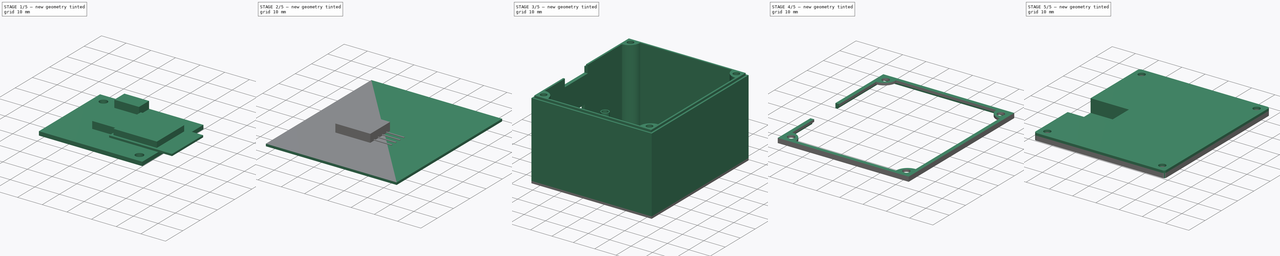
[diagram: build sequence overview — one tinted view per stage of 5, left to right]
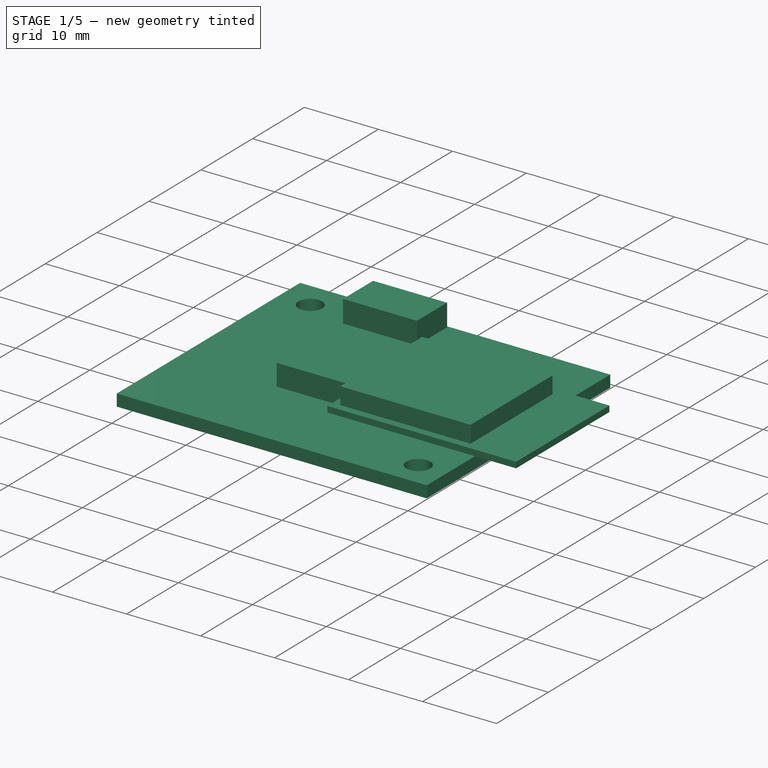
[diagram: stage 1 of 5 — iso view after this stage's code; geometry added in this stage tinted green]
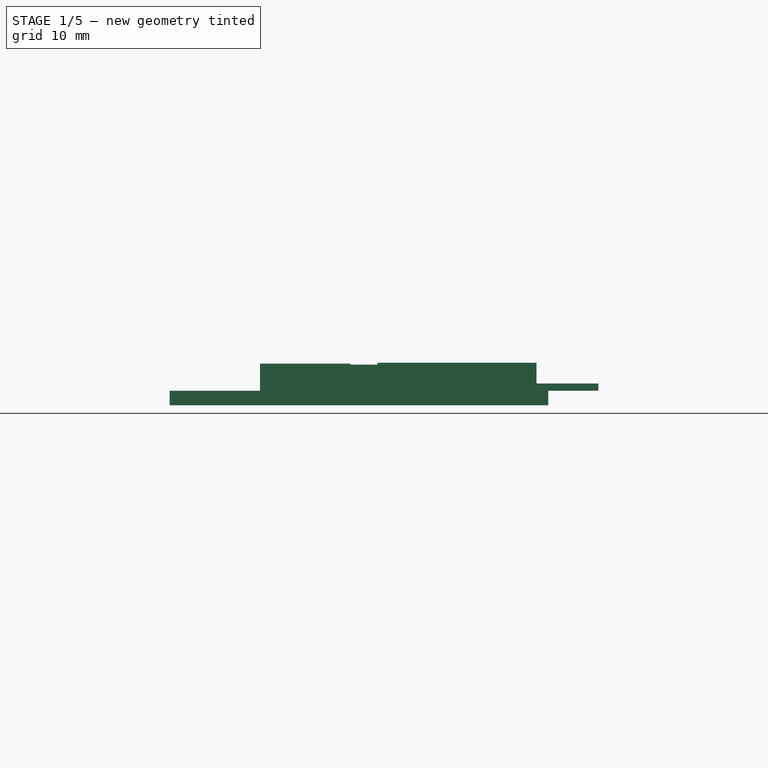
[diagram: stage 1 of 5 — front view after this stage's code; geometry added in this stage tinted green]
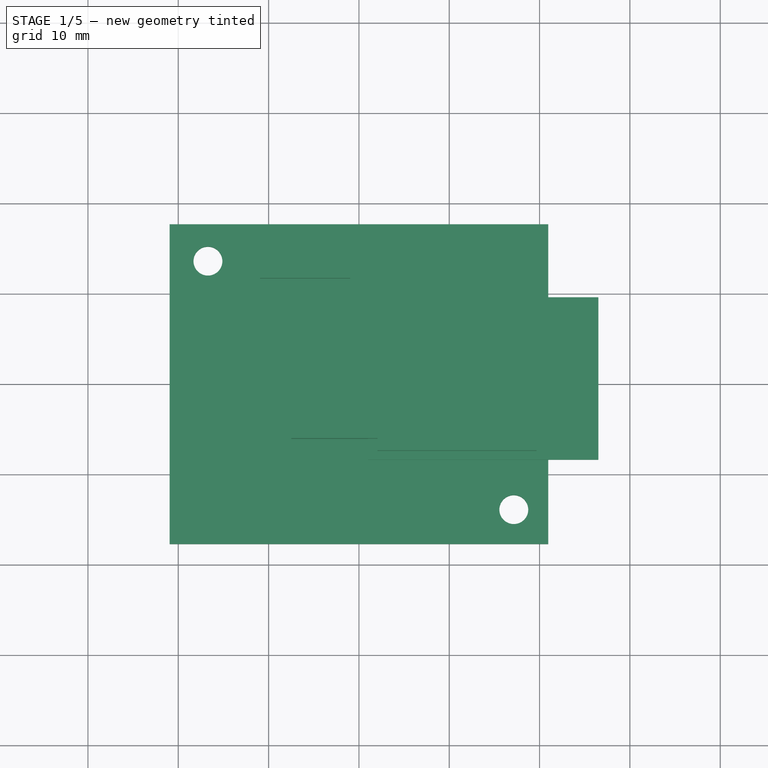
[diagram: stage 1 of 5 — top view after this stage's code; geometry added in this stage tinted green]
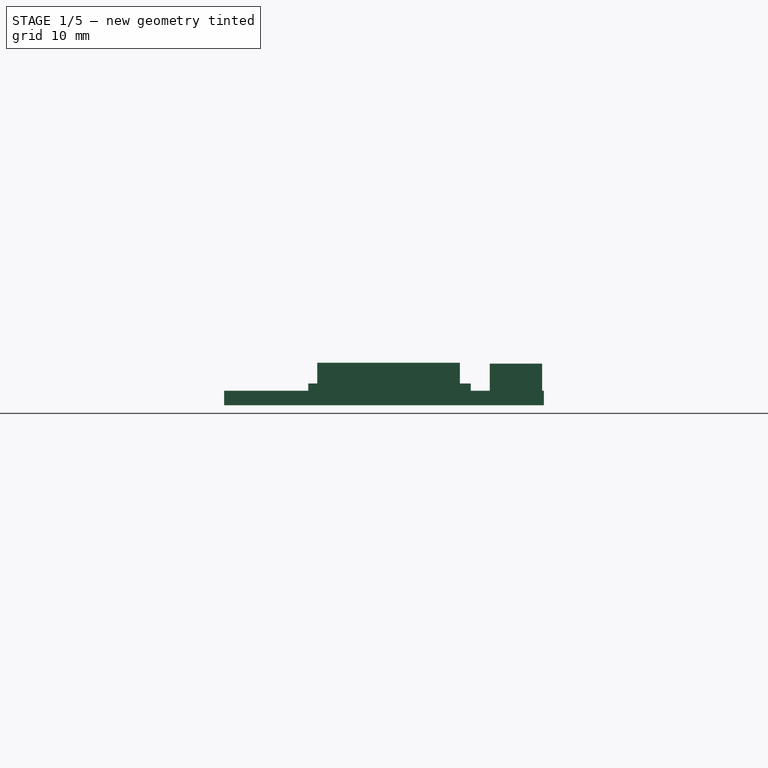
[diagram: stage 1 of 5 — right view after this stage's code; geometry added in this stage tinted green]
FCSTD DOCUMENT  (FreeCAD 0.19R)
Label: pcb_design
License: All rights reserved
LicenseURL: http://en.wikipedia.org/wiki/All_rights_reserved
objects: Sketcher::SketchObject×26, PartDesign::Pad×21, PartDesign::Fillet×7, PartDesign::SubShapeBinder×6, PartDesign::Body×5, PartDesign::Pocket×4, PartDesign::ShapeBinder×2
note: 103 computed .brp shape members not serialized (recipe doc carries the construction recipe); baked Part::Feature solids carry a one-line shape summary decoded from their .brp

FEATURE [Sketcher::SketchObject] Sketch
  FullyConstrained = false
  MapMode = 5
  Support = -> [XY_Plane]
  sketch-geometry (52):
    g0: LineSegment StartX=-30.4823 StartY=-0.785059 StartZ=0 EndX=30.4823 EndY=-0.785059 EndZ=0
    g1: LineSegment StartX=30.4823 StartY=-0.8 StartZ=0 EndX=30.4823 EndY=0.8 EndZ=0
    g2: LineSegment StartX=30.4823 StartY=0.785059 StartZ=0 EndX=-30.4823 EndY=0.785059 EndZ=0
    g3: LineSegment StartX=-30.4823 StartY=0.8 StartZ=0 EndX=-30.4823 EndY=-0.8 EndZ=0
    g4: LineSegment StartX=10.9823 StartY=1.6 StartZ=0 EndX=36.4823 EndY=1.6 EndZ=0
    g5: LineSegment StartX=36.4823 StartY=1.58506 StartZ=0 EndX=36.4823 EndY=0.785059 EndZ=0
    g6: LineSegment StartX=36.4823 StartY=0.79144 StartZ=0 EndX=10.9823 EndY=0.79144 EndZ=0
    g7: LineSegment StartX=10.9823 StartY=0.8 StartZ=0 EndX=10.9823 EndY=1.6 EndZ=0
    g8: LineSegment StartX=12.4823 StartY=1.6 StartZ=0 EndX=30.4823 EndY=1.6 EndZ=0
    g9: LineSegment StartX=30.4823 StartY=1.6 StartZ=0 EndX=30.4823 EndY=3.9 EndZ=0
    g10: LineSegment StartX=30.4823 StartY=3.9 StartZ=0 EndX=12.4823 EndY=3.9 EndZ=0
    g11: LineSegment StartX=12.4823 StartY=3.9 StartZ=0 EndX=12.4823 EndY=1.6 EndZ=0
    g12: LineSegment StartX=-30.4823 StartY=0.785059 StartZ=0 EndX=-23.9823 EndY=0.785059 EndZ=0
    g13: LineSegment StartX=-23.9823 StartY=0.8 StartZ=0 EndX=-23.9823 EndY=3.96 EndZ=0
    g14: LineSegment StartX=-23.9823 StartY=3.96 StartZ=0 EndX=-30.4823 EndY=3.96 EndZ=0
    g15: LineSegment StartX=-30.4823 StartY=3.96 StartZ=0 EndX=-30.4823 EndY=0.8 EndZ=0
    g16: LineSegment StartX=-30.4823 StartY=3.96 StartZ=0 EndX=-10.767 EndY=3.96 EndZ=0
    g17: LineSegment StartX=-10.767 StartY=3.96 StartZ=0 EndX=-10.767 EndY=4.46 EndZ=0
    g18: LineSegment StartX=-10.767 StartY=4.48879 StartZ=0 EndX=-30.4823 EndY=4.48879 EndZ=0
    g19: LineSegment StartX=-30.4823 StartY=4.46 StartZ=0 EndX=-30.4823 EndY=3.96 EndZ=0
    g20: LineSegment StartX=-30.4823 StartY=4.48879 StartZ=0 EndX=-15.4823 EndY=4.48879 EndZ=0
    g21: LineSegment StartX=-11.4833 StartY=4.46 StartZ=0 EndX=-11.4833 EndY=8.96 EndZ=0
    g22: LineSegment StartX=-15.4823 StartY=8.96 StartZ=0 EndX=-30.4823 EndY=8.96 EndZ=0
    g23: LineSegment StartX=-30.4823 StartY=8.96 StartZ=0 EndX=-30.4823 EndY=4.46 EndZ=0
    g24: LineSegment StartX=-11.4833 StartY=5.51379 StartZ=0 EndX=-3.78329 EndY=5.51379 EndZ=0
    g25: LineSegment StartX=-3.78329 StartY=5.51379 StartZ=0 EndX=-3.78329 EndY=6.16379 EndZ=0
    g26: LineSegment StartX=-3.78329 StartY=6.16379 StartZ=0 EndX=-11.4833 EndY=6.16379 EndZ=0
    g27: LineSegment StartX=-11.4833 StartY=6.16379 StartZ=0 EndX=-11.4833 EndY=5.51379 EndZ=0
    g28: LineSegment StartX=-11.3833 StartY=7.0009 StartZ=0 EndX=-3.08329 EndY=7.0009 EndZ=0
    g29: LineSegment StartX=-3.08329 StartY=7.0009 StartZ=0 EndX=-3.08329 EndY=4.7409 EndZ=0
    g30: LineSegment StartX=-3.08329 StartY=4.7409 StartZ=0 EndX=-11.3833 EndY=4.7409 EndZ=0
    g31: LineSegment StartX=-11.3833 StartY=4.7409 StartZ=0 EndX=-11.3833 EndY=7.0009 EndZ=0
    g32: LineSegment StartX=-11.3833 StartY=4.7409 StartZ=0 EndX=-13.2904 EndY=5.51379 EndZ=0
    g33: LineSegment StartX=-11.3833 StartY=7.0009 StartZ=0 EndX=-13.2631 EndY=6.16379 EndZ=0
    g34: LineSegment StartX=-3.08329 StartY=9.13506 StartZ=0 EndX=-1.48329 EndY=9.13506 EndZ=0
    g35: LineSegment StartX=-1.48329 StartY=9.13506 StartZ=0 EndX=-1.48329 EndY=0.785059 EndZ=0
    g36: LineSegment StartX=-1.48329 StartY=0.785059 StartZ=0 EndX=-3.08329 EndY=0.785059 EndZ=0
    g37: LineSegment StartX=-3.08329 StartY=0.785059 StartZ=0 EndX=-3.08329 EndY=9.13506 EndZ=0
    g38: LineSegment StartX=-3.08329 StartY=3.50702 StartZ=0 EndX=-4.08329 EndY=3.50702 EndZ=0
    g39: LineSegment StartX=-4.08329 StartY=3.50702 StartZ=0 EndX=-4.08329 EndY=2.00494 EndZ=0
    g40: LineSegment StartX=-4.08329 StartY=2.00494 StartZ=0 EndX=-3.08329 EndY=2.00494 EndZ=0
    g41: LineSegment StartX=-3.08329 StartY=2.00494 StartZ=0 EndX=-3.08329 EndY=3.50702 EndZ=0
    g42: LineSegment StartX=-5.22275 StartY=-1.14468 StartZ=0 EndX=-5.22275 EndY=1.88506 EndZ=0
    g43: LineSegment StartX=-4.57275 StartY=-1.14468 StartZ=0 EndX=-4.57275 EndY=1.88506 EndZ=0
    g44: ArcOfCircle CenterX=-4.08329 CenterY=1.88506 CenterZ=0 NormalX=0 NormalY=0 NormalZ=1 AngleXU=0 Radius=0.489458 StartAngle=1.5708 EndAngle=3.14159
    g45: ArcOfCircle CenterX=-4.08329 CenterY=1.88506 CenterZ=0 NormalX=0 NormalY=0 NormalZ=1 AngleXU=0 Radius=1.13946 StartAngle=1.5708 EndAngle=3.14159
    g46: LineSegment StartX=-4.08329 StartY=2.37452 StartZ=0 EndX=-1.18432 EndY=2.37452 EndZ=0
    g47: LineSegment StartX=-4.08329 StartY=3.02452 StartZ=0 EndX=-1.18432 EndY=3.02452 EndZ=0
    g48: LineSegment StartX=-1.18432 StartY=3.02452 StartZ=0 EndX=-0.721889 EndY=2.69952 EndZ=0
    g49: LineSegment StartX=-1.18432 StartY=2.37452 StartZ=0 EndX=-0.721889 EndY=2.69952 EndZ=0
    g50: LineSegment StartX=-5.22275 StartY=-1.14468 StartZ=0 EndX=-4.8997 EndY=-1.4661 EndZ=0
    g51: LineSegment StartX=-4.8995 StartY=-1.46234 StartZ=0 EndX=-4.57275 EndY=-1.14468 EndZ=0
  constraints (120):
    c: Horizontal(g0)
    c: Horizontal(g2)
    c: Vertical(g1)
    c: Vertical(g3)
    c: DistanceY(g3,g3) = 1.6
    c: Horizontal(g4)
    c: Horizontal(g6)
    c: Vertical(g5)
    c: Vertical(g7)
    c: PointOnObject(g5,g2)
    c: DistanceY(g5,g5) = 0.8
    c: DistanceX(g4,g4) = 25.5
    c: Horizontal(g8)
    c: Horizontal(g10)
    c: Vertical(g9)
    c: Vertical(g11)
    c: PointOnObject(g8,g4)
    c: DistanceX(g4,g8) = 1.5
    c: DistanceY(g11,g11) = 2.3
    c: DistanceX(g8,g4) = 6
    c: Vertical(g8,g1)
    c: Horizontal(g12)
    c: Horizontal(g14)
    c: Vertical(g13)
    c: Vertical(g15)
    c: PointOnObject(g12,g2)
    c: DistanceX(g14,g14) = 6.5
    c: DistanceY(g13,g13) = 3.16
    c: Symmetric(g2,g0,g-1)
    c: Vertical(g14,g2)
    c: Horizontal(g16)
    c: Horizontal(g18)
    c: Vertical(g17)
    c: Vertical(g19)
    c: PointOnObject(g16,g14)
    c: DistanceY(g17,g17) = 0.5
    c: Vertical(g18,g14)
    c: Horizontal(g20)
    c: Horizontal(g22)
    c: Vertical(g21)
    c: Vertical(g23)
    c: PointOnObject(g20,g18)
    c: Vertical(g22,g18)
    c: DistanceY(g21,g21) = 4.5
    c: DistanceX(g22,g22) = 15
    c: Horizontal(g24)
    c: Horizontal(g26)
    c: Vertical(g25)
    c: Vertical(g27)
    c: PointOnObject(g24,g21)
    c: DistanceY(g20,g24) = 1.025
    c: DistanceX(g26,g25) = 7.7
    c: DistanceY(g25,g25) = 0.65
    c: DistanceY(g6,g24) = 4.72235
    c: Coincident(g28,g29)
    c: Coincident(g29,g30)
    c: Coincident(g30,g31)
    c: Coincident(g31,g28)
    c: Horizontal(g28)
    c: Horizontal(g30)
    c: Vertical(g29)
    c: Vertical(g31)
    c: DistanceX(g28,g28) = 8.3
    c: DistanceY(g29,g29) = 2.26
    c: Coincident(g32,g30)
    c: PointOnObject(g32,g24)
    c: Coincident(g33,g28)
    c: PointOnObject(g33,g26)
    c: Equal(g33,g32)
    c: Coincident(g34,g35)
    c: Coincident(g35,g36)
    c: Coincident(g36,g37)
    c: Coincident(g37,g34)
    c: Horizontal(g34)
    c: Horizontal(g36)
    c: Vertical(g35)
    c: Vertical(g37)
    c: PointOnObject(g35,g2)
    c: Vertical(g28,g34)
    c: DistanceX(g34,g34) = 1.6
    c: Coincident(g38,g39)
    c: Coincident(g39,g40)
    c: Coincident(g40,g41)
    c: Coincident(g41,g38)
    c: Horizontal(g38)
    c: Horizontal(g40)
    c: Vertical(g39)
    c: Vertical(g41)
    c: PointOnObject(g38,g37)
    c: Vertical(g42)
    c: Vertical(g43)
    c: Horizontal(g42,g43)
    c: DistanceX(g42,g43) = 0.65
    c: PointOnObject(g44,g39)
    c: Coincident(g44,g43)
    c: PointOnObject(g44,g39)
    c: Coincident(g45,g44)
    c: Coincident(g45,g42)
    c: PointOnObject(g45,g39)
    c: Horizontal(g42,g43)
    c: DistanceX(g38,g38) = 1
    c: DistanceX(g21,g30) = 0.1
    c: Coincident(g24,g27)
    c: Coincident(g27,g26)
    c: Coincident(g25,g26)
    c: Coincident(g25,g24)
    c: Horizontal(g43,g44)
    c: DistanceY(g36,g43) = 1.1
    c: Coincident(g46,g44)
    c: Horizontal(g46)
    c: Coincident(g47,g45)
    c: Horizontal(g47)
    c: Vertical(g47,g46)
    c: Coincident(g48,g47)
    c: Coincident(g49,g46)
    c: Coincident(g49,g48)
    c: Equal(g48,g49)
    c: Coincident(g50,g42)
    c: Coincident(g51,g43)
    c: Equal(g50,g51)
FEATURE [Sketcher::SketchObject] Sketch001
  FullyConstrained = true
  MapMode = 5
  Support = -> [XY_Plane]
  sketch-geometry (6):
    g0: LineSegment StartX=-20.955 StartY=-17.703 StartZ=0 EndX=20.955 EndY=-17.703 EndZ=0
    g1: LineSegment StartX=20.955 StartY=-17.703 StartZ=0 EndX=20.955 EndY=17.703 EndZ=0
    g2: LineSegment StartX=20.955 StartY=17.703 StartZ=0 EndX=-20.955 EndY=17.703 EndZ=0
    g3: LineSegment StartX=-20.955 StartY=17.703 StartZ=0 EndX=-20.955 EndY=-17.703 EndZ=0
    g4: Circle CenterX=-16.718 CenterY=13.62 CenterZ=0 NormalX=0 NormalY=0 NormalZ=1 AngleXU=0 Radius=1.6
    g5: Circle CenterX=17.145 CenterY=-13.893 CenterZ=0 NormalX=0 NormalY=0 NormalZ=1 AngleXU=0 Radius=1.6
  constraints (17):
    c: Coincident(g0,g1)
    c: Coincident(g1,g2)
    c: Coincident(g2,g3)
    c: Coincident(g3,g0)
    c: Horizontal(g0)
    c: Horizontal(g2)
    c: Vertical(g1)
    c: Vertical(g3)
    c: Symmetric(g1,g0,g-1)
    c: DistanceX(g2,g2) = 41.91
    c: DistanceY(g1,g1) = 35.406
    c: DistanceX(g2,g4) = 4.237
    c: Radius(g4) = 1.6
    c: DistanceY(g4,g2) = 4.083
    c: Radius(g5) = 1.6
    c: DistanceX(g5,g0) = 3.81
    c: DistanceY(g0,g5) = 3.81
FEATURE [PartDesign::Pad] Pad
  Direction = (1,1,1)
  Length = 1.6
  Length2 = 100
  Profile = -> Sketch001
  Type = 0
FEATURE [Sketcher::SketchObject] Sketch002
  ExternalGeometry = -> [Sketch001]
  FullyConstrained = true
  MapMode = 5
  Placement = pos=(0,0,1.6) rot=(0,0,1;0rad)
  Support = -> [Pad]
  sketch-geometry (4):
    g0: LineSegment StartX=1.005 StartY=9.607 StartZ=0 EndX=26.505 EndY=9.607 EndZ=0
    g1: LineSegment StartX=26.505 StartY=9.607 StartZ=0 EndX=26.505 EndY=-8.393 EndZ=0
    g2: LineSegment StartX=26.505 StartY=-8.393 StartZ=0 EndX=1.005 EndY=-8.393 EndZ=0
    g3: LineSegment StartX=1.005 StartY=-8.393 StartZ=0 EndX=1.005 EndY=9.607 EndZ=0
  constraints (13):
    c: Coincident(g0,g1)
    c: Coincident(g1,g2)
    c: Coincident(g2,g3)
    c: Coincident(g3,g0)
    c: Horizontal(g0)
    c: Horizontal(g2)
    c: Vertical(g1)
    c: Vertical(g3)
    c: DistanceY(g3,g3) = 18
    c: DistanceX(g2,g2) = 25.5
    c: DistanceY(g-3,g1) = 9.31
    c: DistanceY(g0,g-4) = 8.096
    c: DistanceX(g2,g-3) = 19.95
FEATURE [PartDesign::Pad] Pad001
  BaseFeature = -> Pad
  Direction = (1,1,1)
  Length = 0.8
  Length2 = 100
  Profile = -> Sketch002
  Type = 0
FEATURE [Sketcher::SketchObject] Sketch003
  ExternalGeometry = -> [Pad001]
  FullyConstrained = true
  MapMode = 5
  Placement = pos=(0,0,2.4) rot=(0,0,1;0rad)
  Support = -> [Pad001]
  sketch-geometry (4):
    g0: LineSegment StartX=2.055 StartY=-7.393 StartZ=0 EndX=19.655 EndY=-7.393 EndZ=0
    g1: LineSegment StartX=19.655 StartY=-7.393 StartZ=0 EndX=19.655 EndY=8.407 EndZ=0
    g2: LineSegment StartX=19.655 StartY=8.407 StartZ=0 EndX=2.055 EndY=8.407 EndZ=0
    g3: LineSegment StartX=2.055 StartY=8.407 StartZ=0 EndX=2.055 EndY=-7.393 EndZ=0
  constraints (12):
    c: Coincident(g0,g1)
    c: Coincident(g1,g2)
    c: Coincident(g2,g3)
    c: Coincident(g3,g0)
    c: Horizontal(g0)
    c: Horizontal(g2)
    c: Vertical(g1)
    c: Vertical(g3)
    c: DistanceX(g0,g0) = 17.6
    c: DistanceY(g1,g1) = 15.8
    c: DistanceY(g-3,g0) = 1
    c: DistanceX(g-3,g0) = 1.05
FEATURE [PartDesign::Pad] Pad002
  BaseFeature = -> Pad001
  Direction = (1,1,1)
  Length = 2.3
  Length2 = 100
  Profile = -> Sketch003
  Type = 0
FEATURE [Sketcher::SketchObject] Sketch004
  ExternalGeometry = -> [Pad002]
  FullyConstrained = true
  MapMode = 5
  Placement = pos=(0,0,1.6) rot=(0,0,1;0rad)
  Support = -> [Pad002]
  sketch-geometry (4):
    g0: LineSegment StartX=-10.955 StartY=17.503 StartZ=0 EndX=-0.955 EndY=17.503 EndZ=0
    g1: LineSegment StartX=-0.955 StartY=17.503 StartZ=0 EndX=-0.955 EndY=11.703 EndZ=0
    g2: LineSegment StartX=-0.955 StartY=11.703 StartZ=0 EndX=-10.955 EndY=11.703 EndZ=0
    g3: LineSegment StartX=-10.955 StartY=11.703 StartZ=0 EndX=-10.955 EndY=17.503 EndZ=0
  constraints (12):
    c: Coincident(g0,g1)
    c: Coincident(g1,g2)
    c: Coincident(g2,g3)
    c: Coincident(g3,g0)
    c: Horizontal(g0)
    c: Horizontal(g2)
    c: Vertical(g1)
    c: Vertical(g3)
    c: DistanceX(g2,g2) = 10
    c: DistanceX(g-3,g0) = 10
    c: DistanceY(g1,g1) = 5.8
    c: DistanceY(g0,g-3) = 0.2
FEATURE [PartDesign::Pad] Pad003
  BaseFeature = -> Pad002
  Direction = (1,1,1)
  Length = 3
  Length2 = 100
  Profile = -> Sketch004
  Type = 0
FEATURE [PartDesign::Body] Body001  label="Battery"
  Group = -> [Sketch009,Pad008]
  Origin = -> Origin001
  Placement = pos=(9,10,-7) rot=(0,0,1;0rad)
  Tip = -> Pad008
FEATURE [Sketcher::SketchObject] Sketch010
  FullyConstrained = true
  MapMode = 5
  Support = -> [XY_Plane002]
  sketch-geometry (4):
    g0: LineSegment StartX=-7.5 StartY=6.05 StartZ=0 EndX=7.5 EndY=6.05 EndZ=0
    g1: LineSegment StartX=7.5 StartY=6.05 StartZ=0 EndX=7.5 EndY=-6.05 EndZ=0
    g2: LineSegment StartX=7.5 StartY=-6.05 StartZ=0 EndX=-7.5 EndY=-6.05 EndZ=0
    g3: LineSegment StartX=-7.5 StartY=-6.05 StartZ=0 EndX=-7.5 EndY=6.05 EndZ=0
  constraints (11):
    c: Coincident(g0,g1)
    c: Coincident(g1,g2)
    c: Coincident(g2,g3)
    c: Coincident(g3,g0)
    c: Horizontal(g0)
    c: Horizontal(g2)
    c: Vertical(g1)
    c: Vertical(g3)
    c: DistanceX(g2,g2) = 15
    c: DistanceY(g3,g3) = 12.1
    c: Symmetric(g0,g1,g-1)
FEATURE [PartDesign::Pad] Pad009
  Direction = (1,1,1)
  Length = 4.5
  Length2 = 100
  Profile = -> Sketch010
  Type = 0
FEATURE [Sketcher::SketchObject] Sketch011
  ExternalGeometry = -> [Pad009]
  FullyConstrained = true
  MapMode = 5
  Placement = pos=(7.5,0,0) rot=(0.57735,0.57735,0.57735;2.0944rad)
  Support = -> [Pad009]
  sketch-geometry (18):
    g0: LineSegment StartX=-4.03 StartY=1.21 StartZ=0 EndX=-3.59 EndY=1.21 EndZ=0
    g1: LineSegment StartX=-3.59 StartY=1.21 StartZ=0 EndX=-3.59 EndY=1.49 EndZ=0
    g2: LineSegment StartX=-3.59 StartY=1.49 StartZ=0 EndX=-4.03 EndY=1.49 EndZ=0
    g3: LineSegment StartX=-4.03 StartY=1.49 StartZ=0 EndX=-4.03 EndY=1.21 EndZ=0
    g4: LineSegment StartX=-1.49 StartY=1.49 StartZ=0 EndX=-1.05 EndY=1.49 EndZ=0
    g5: LineSegment StartX=-1.05 StartY=1.49 StartZ=0 EndX=-1.05 EndY=1.21 EndZ=0
    g6: LineSegment StartX=-1.05 StartY=1.21 StartZ=0 EndX=-1.49 EndY=1.21 EndZ=0
    g7: LineSegment StartX=-1.49 StartY=1.21 StartZ=0 EndX=-1.49 EndY=1.49 EndZ=0
    g8: LineSegment StartX=1.05 StartY=1.49 StartZ=0 EndX=1.49 EndY=1.49 EndZ=0
    g9: LineSegment StartX=1.49 StartY=1.49 StartZ=0 EndX=1.49 EndY=1.21 EndZ=0
    g10: LineSegment StartX=1.49 StartY=1.21 StartZ=0 EndX=1.05 EndY=1.21 EndZ=0
    g11: LineSegment StartX=1.05 StartY=1.21 StartZ=0 EndX=1.05 EndY=1.49 EndZ=0
    g12: LineSegment StartX=3.59 StartY=1.49 StartZ=0 EndX=4.03 EndY=1.49 EndZ=0
    g13: LineSegment StartX=4.03 StartY=1.49 StartZ=0 EndX=4.03 EndY=1.21 EndZ=0
    g14: LineSegment StartX=4.03 StartY=1.21 StartZ=0 EndX=3.59 EndY=1.21 EndZ=0
    g15: LineSegment StartX=3.59 StartY=1.21 StartZ=0 EndX=3.59 EndY=1.49 EndZ=0
    g16: LineSegment StartX=4.03 StartY=1.21 StartZ=0 EndX=6.05 EndY=1.21 EndZ=0
    g17: LineSegment StartX=-4.03 StartY=1.21 StartZ=0 EndX=-6.05 EndY=1.21 EndZ=0
  constraints (56):
    c: Coincident(g0,g1)
    c: Coincident(g1,g2)
    c: Coincident(g2,g3)
    c: Coincident(g3,g0)
    c: Horizontal(g0)
    c: Horizontal(g2)
    c: Vertical(g1)
    c: Vertical(g3)
    c: DistanceY(g3,g3) = 0.28
    c: DistanceX(g2,g2) = 0.44
    c: DistanceY(g-3,g0) = 1.21
    c: Coincident(g4,g5)
    c: Coincident(g5,g6)
    c: Coincident(g6,g7)
    c: Coincident(g7,g4)
    c: Horizontal(g4)
    c: Horizontal(g6)
    c: Vertical(g5)
    c: Vertical(g7)
    c: Coincident(g8,g9)
    c: Coincident(g9,g10)
    c: Coincident(g10,g11)
    c: Coincident(g11,g8)
    c: Horizontal(g8)
    c: Horizontal(g10)
    c: Vertical(g9)
    c: Vertical(g11)
    c: Coincident(g12,g13)
    c: Coincident(g13,g14)
    c: Coincident(g14,g15)
    c: Coincident(g15,g12)
    c: Horizontal(g12)
    c: Horizontal(g14)
    c: Vertical(g13)
    c: Vertical(g15)
    c: Equal(g2,g4)
    c: Equal(g2,g8)
    c: Equal(g2,g12)
    c: DistanceX(g10,g14) = 2.54
    c: Horizontal(g14,g9)
    c: Horizontal(g10,g5)
    c: Horizontal(g0,g6)
    c: DistanceX(g0,g6) = 2.54
    c: DistanceX(g6,g10) = 2.54
    c: Equal(g1,g5)
    c: Equal(g5,g9)
    c: Equal(g9,g13)
    c: DistanceX(g13,g-4) = 2.02
    c: DistanceX(g-3,g0) = 2.02
    c: Coincident(g16,g13)
    c: PointOnObject(g16,g-4)
    c: Horizontal(g16)
    c: Coincident(g17,g0)
    c: PointOnObject(g17,g-3)
    c: Horizontal(g17)
    c: Equal(g16,g17)
FEATURE [PartDesign::Pad] Pad010
  BaseFeature = -> Pad009
  Direction = (1,1,1)
  Length = 7.7
  Length2 = 100
  Profile = -> Sketch011
  Type = 0
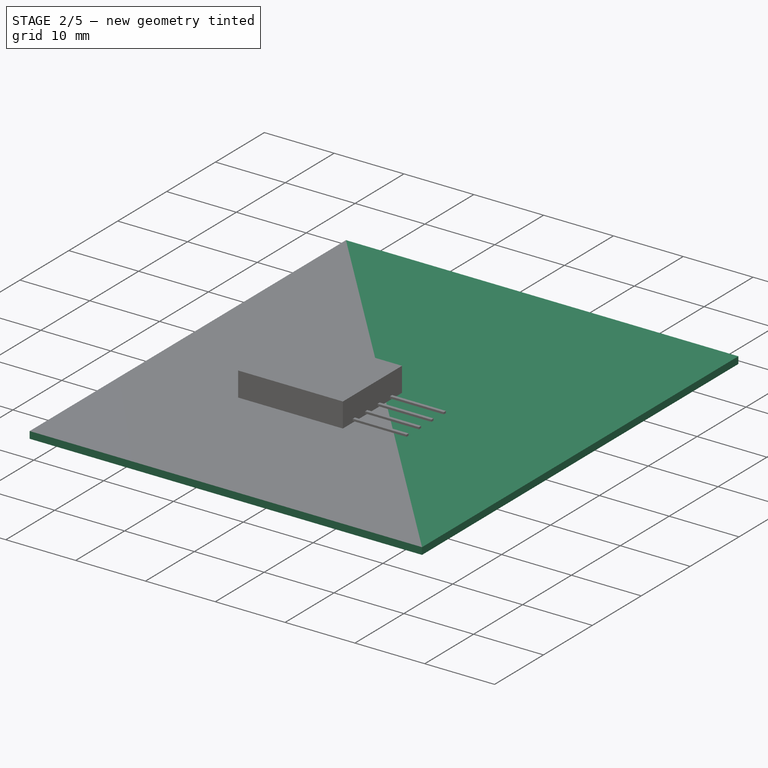
[diagram: stage 2 of 5 — iso view after this stage's code; geometry added in this stage tinted green]
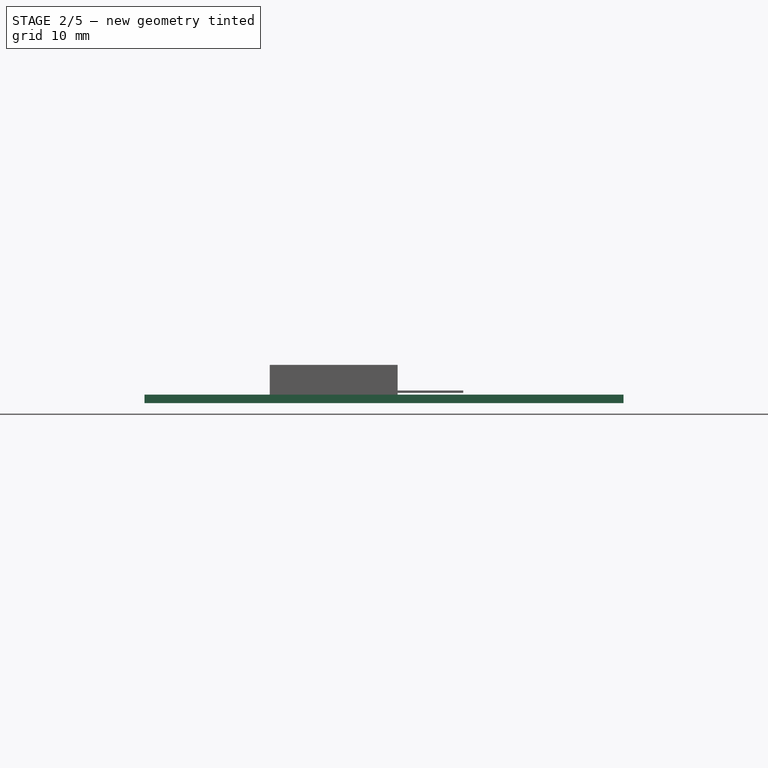
[diagram: stage 2 of 5 — front view after this stage's code; geometry added in this stage tinted green]
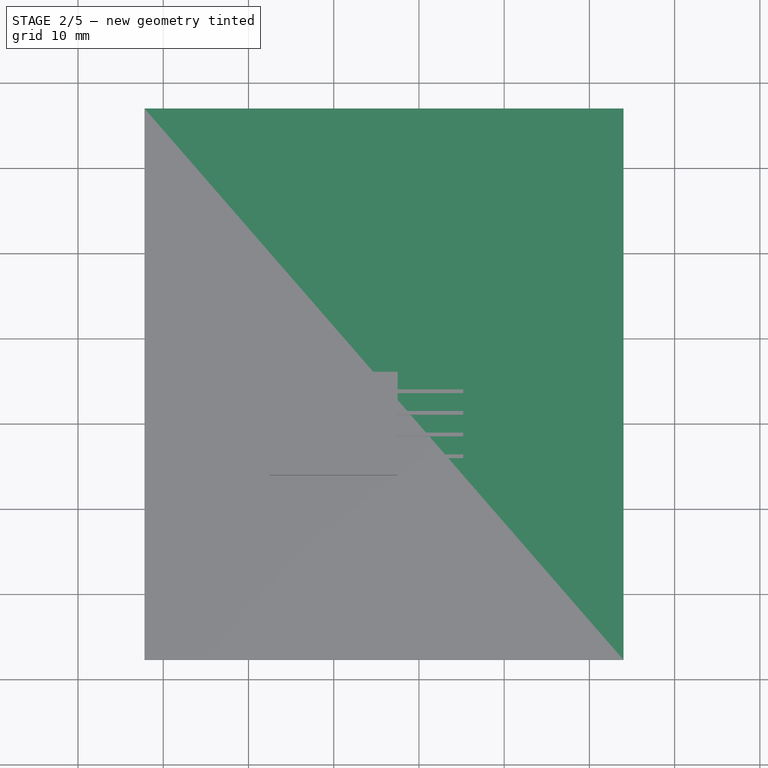
[diagram: stage 2 of 5 — top view after this stage's code; geometry added in this stage tinted green]
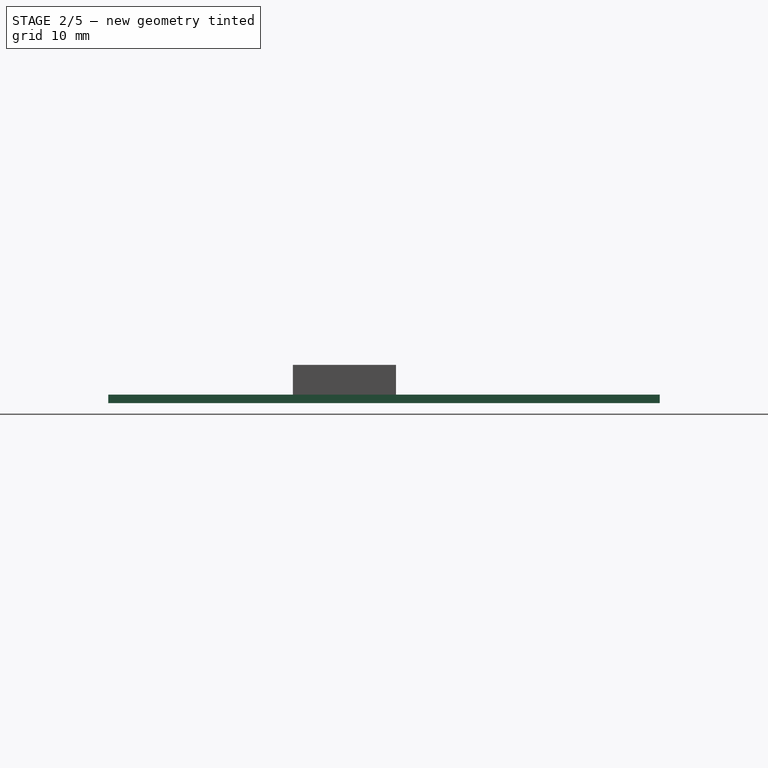
[diagram: stage 2 of 5 — right view after this stage's code; geometry added in this stage tinted green]
FEATURE [Sketcher::SketchObject] Sketch005
  ExternalGeometry = -> [Pad003]
  FullyConstrained = true
  MapMode = 5
  Placement = pos=(0,0,4.6) rot=(0,0,1;0rad)
  Support = -> [Pad003]
  sketch-geometry (4):
    g0: LineSegment StartX=-9.705 StartY=12.703 StartZ=0 EndX=-2.205 EndY=12.703 EndZ=0
    g1: LineSegment StartX=-2.205 StartY=12.703 StartZ=0 EndX=-2.205 EndY=11.703 EndZ=0
    g2: LineSegment StartX=-2.205 StartY=11.703 StartZ=0 EndX=-9.705 EndY=11.703 EndZ=0
    g3: LineSegment StartX=-9.705 StartY=11.703 StartZ=0 EndX=-9.705 EndY=12.703 EndZ=0
  constraints (12):
    c: Coincident(g0,g1)
    c: Coincident(g1,g2)
    c: Coincident(g2,g3)
    c: Coincident(g3,g0)
    c: Horizontal(g0)
    c: Horizontal(g2)
    c: Vertical(g1)
    c: Vertical(g3)
    c: DistanceX(g2,g2) = 7.5
    c: DistanceY(g3,g3) = 1
    c: DistanceX(g-3,g0) = 1.25
    c: PointOnObject(g2,g-4)
FEATURE [PartDesign::Pad] Pad004
  BaseFeature = -> Pad003
  Direction = (1,1,1)
  Length = 8
  Length2 = 100
  Profile = -> Sketch005
  Type = 0
FEATURE [Sketcher::SketchObject] Sketch006  label="USBSketch"
  ExternalGeometry = -> [Pad004]
  FullyConstrained = true
  MapMode = 5
  Placement = pos=(0,0,1.6) rot=(0,0,1;0rad)
  Support = -> [Pad004]
  sketch-geometry (4):
    g0: LineSegment StartX=-22.2 StartY=5.557 StartZ=0 EndX=-14.7 EndY=5.557 EndZ=0
    g1: LineSegment StartX=-14.7 StartY=5.557 StartZ=0 EndX=-14.7 EndY=-3.603 EndZ=0
    g2: LineSegment StartX=-14.7 StartY=-3.603 StartZ=0 EndX=-22.2 EndY=-3.603 EndZ=0
    g3: LineSegment StartX=-22.2 StartY=-3.603 StartZ=0 EndX=-22.2 EndY=5.557 EndZ=0
  constraints (12):
    c: Coincident(g0,g1)
    c: Coincident(g1,g2)
    c: Coincident(g2,g3)
    c: Coincident(g3,g0)
    c: Horizontal(g0)
    c: Horizontal(g2)
    c: Vertical(g1)
    c: Vertical(g3)
    c: DistanceY(g3,g3) = 9.16
    c: DistanceX(g0,g0) = 7.5
    c: DistanceY(g-4,g1) = 14.1
    c: DistanceX(g2,g-4) = 1.245
FEATURE [PartDesign::Pad] Pad005
  BaseFeature = -> Pad004
  Direction = (1,1,1)
  Length = 3.16
  Length2 = 100
  Profile = -> Sketch006
  Type = 0
FEATURE [Sketcher::SketchObject] Sketch007
  ExternalGeometry = -> [Sketch001]
  FullyConstrained = true
  MapMode = 5
  Placement = pos=(0,0,0) rot=(1,0,0;3.14159rad)
  Support = -> [Pad005]
  sketch-geometry (4):
    g0: LineSegment StartX=-19.179 StartY=13.736 StartZ=0 EndX=-13.159 EndY=13.736 EndZ=0
    g1: LineSegment StartX=-13.159 StartY=13.736 StartZ=0 EndX=-13.159 EndY=5.896 EndZ=0
    g2: LineSegment StartX=-13.159 StartY=5.896 StartZ=0 EndX=-19.179 EndY=5.896 EndZ=0
    g3: LineSegment StartX=-19.179 StartY=5.896 StartZ=0 EndX=-19.179 EndY=13.736 EndZ=0
  constraints (12):
    c: Coincident(g0,g1)
    c: Coincident(g1,g2)
    c: Coincident(g2,g3)
    c: Coincident(g3,g0)
    c: Horizontal(g0)
    c: Horizontal(g2)
    c: Vertical(g1)
    c: Vertical(g3)
    c: DistanceX(g-4,g0) = 1.776
    c: DistanceY(g0,g-4) = 3.967
    c: DistanceX(g0,g0) = 6.02
    c: DistanceY(g1,g1) = 7.84
FEATURE [PartDesign::Pad] Pad006
  BaseFeature = -> Pad005
  Direction = (1,1,1)
  Length = 3
  Length2 = 100
  Profile = -> Sketch007
  Type = 0
FEATURE [Sketcher::SketchObject] Sketch008
  ExternalGeometry = -> [Pad006]
  FullyConstrained = true
  MapMode = 5
  Placement = pos=(0,0,-3) rot=(1,0,0;3.14159rad)
  Support = -> [Pad006]
  sketch-geometry (4):
    g0: LineSegment StartX=-13.159 StartY=12.146 StartZ=0 EndX=-14.159 EndY=12.146 EndZ=0
    g1: LineSegment StartX=-14.159 StartY=12.146 StartZ=0 EndX=-14.159 EndY=7.146 EndZ=0
    g2: LineSegment StartX=-14.159 StartY=7.146 StartZ=0 EndX=-13.159 EndY=7.146 EndZ=0
    g3: LineSegment StartX=-13.159 StartY=7.146 StartZ=0 EndX=-13.159 EndY=12.146 EndZ=0
  constraints (12):
    c: Coincident(g0,g1)
    c: Coincident(g1,g2)
    c: Coincident(g2,g3)
    c: Coincident(g3,g0)
    c: Horizontal(g0)
    c: Horizontal(g2)
    c: Vertical(g1)
    c: Vertical(g3)
    c: PointOnObject(g0,g-3)
    c: DistanceY(g1,g1) = 5
    c: DistanceX(g2,g2) = 1
    c: DistanceY(g-3,g2) = 1.25
FEATURE [PartDesign::Pad] Pad007
  BaseFeature = -> Pad006
  Direction = (1,1,1)
  Length = 8
  Length2 = 100
  Profile = -> Sketch008
  Type = 0
FEATURE [Sketcher::SketchObject] Sketch009
  FullyConstrained = true
  MapMode = 5
  Support = -> [XY_Plane001]
  sketch-geometry (4):
    g0: LineSegment StartX=-20 StartY=20 StartZ=0 EndX=20 EndY=20 EndZ=0
    g1: LineSegment StartX=20 StartY=20 StartZ=0 EndX=20 EndY=-20 EndZ=0
    g2: LineSegment StartX=20 StartY=-20 StartZ=0 EndX=-20 EndY=-20 EndZ=0
    g3: LineSegment StartX=-20 StartY=-20 StartZ=0 EndX=-20 EndY=20 EndZ=0
  constraints (11):
    c: Coincident(g0,g1)
    c: Coincident(g1,g2)
    c: Coincident(g2,g3)
    c: Coincident(g3,g0)
    c: Horizontal(g0)
    c: Horizontal(g2)
    c: Vertical(g1)
    c: Vertical(g3)
    c: DistanceY(g1,g1) = 40
    c: DistanceX(g0,g0) = 40
    c: Symmetric(g0,g2,g-1)
FEATURE [PartDesign::Pad] Pad008
  Direction = (1,1,1)
  Length = 8
  Length2 = 100
  Profile = -> Sketch009
  Reversed = true
  Type = 0
FEATURE [PartDesign::Body] Body002  label="Sensor"
  Group = -> [Sketch010,Pad009,Sketch011,Pad010]
  Origin = -> Origin002
  Placement = pos=(-14,0,18) rot=(0,0,1;0rad)
  Tip = -> Pad010
FEATURE [Sketcher::SketchObject] Sketch012
  ExternalGeometry = -> [Pad007]
  FullyConstrained = true
  MapMode = 5
  Placement = pos=(0,0,4.6) rot=(0,0,1;0rad)
  Support = -> [Pad007]
  sketch-geometry (18):
    g0: LineSegment StartX=-10.065 StartY=14.303 StartZ=0 EndX=-9.465 EndY=14.303 EndZ=0
    g1: LineSegment StartX=-9.465 StartY=14.303 StartZ=0 EndX=-9.465 EndY=13.703 EndZ=0
    g2: LineSegment StartX=-9.465 StartY=13.703 StartZ=0 EndX=-10.065 EndY=13.703 EndZ=0
    g3: LineSegment StartX=-10.065 StartY=13.703 StartZ=0 EndX=-10.065 EndY=14.303 EndZ=0
    g4: LineSegment StartX=-7.525 StartY=14.303 StartZ=0 EndX=-6.925 EndY=14.303 EndZ=0
    g5: LineSegment StartX=-6.925 StartY=14.303 StartZ=0 EndX=-6.925 EndY=13.703 EndZ=0
    g6: LineSegment StartX=-6.925 StartY=13.703 StartZ=0 EndX=-7.525 EndY=13.703 EndZ=0
    g7: LineSegment StartX=-7.525 StartY=13.703 StartZ=0 EndX=-7.525 EndY=14.303 EndZ=0
    g8: LineSegment StartX=-4.985 StartY=13.703 StartZ=0 EndX=-4.385 EndY=13.703 EndZ=0
    g9: LineSegment StartX=-4.385 StartY=13.703 StartZ=0 EndX=-4.385 EndY=14.303 EndZ=0
    g10: LineSegment StartX=-4.385 StartY=14.303 StartZ=0 EndX=-4.985 EndY=14.303 EndZ=0
    g11: LineSegment StartX=-4.985 StartY=14.303 StartZ=0 EndX=-4.985 EndY=13.703 EndZ=0
    g12: LineSegment StartX=-2.445 StartY=13.703 StartZ=0 EndX=-1.845 EndY=13.703 EndZ=0
    g13: LineSegment StartX=-1.845 StartY=13.703 StartZ=0 EndX=-1.845 EndY=14.303 EndZ=0
    g14: LineSegment StartX=-1.845 StartY=14.303 StartZ=0 EndX=-2.445 EndY=14.303 EndZ=0
    g15: LineSegment StartX=-2.445 StartY=14.303 StartZ=0 EndX=-2.445 EndY=13.703 EndZ=0
    g16: LineSegment StartX=-10.065 StartY=13.703 StartZ=0 EndX=-10.955 EndY=13.703 EndZ=0
    g17: LineSegment StartX=-1.845 StartY=13.703 StartZ=0 EndX=-0.955 EndY=13.703 EndZ=0
  constraints (54):
    c: Coincident(g0,g1)
    c: Coincident(g1,g2)
    c: Coincident(g2,g3)
    c: Coincident(g3,g0)
    c: Horizontal(g0)
    c: Horizontal(g2)
    c: Vertical(g1)
    c: Vertical(g3)
    c: DistanceX(g0,g0) = 0.6
    c: DistanceY(g1,g1) = 0.6
    c: Coincident(g4,g5)
    c: Coincident(g5,g6)
    c: Coincident(g6,g7)
    c: Coincident(g7,g4)
    c: Horizontal(g4)
    c: Horizontal(g6)
    c: Vertical(g5)
    c: Vertical(g7)
    c: Coincident(g8,g9)
    c: Coincident(g9,g10)
    c: Coincident(g10,g11)
    c: Coincident(g11,g8)
    c: Horizontal(g8)
    c: Horizontal(g10)
    c: Vertical(g9)
    c: Vertical(g11)
    c: Coincident(g12,g13)
    c: Coincident(g13,g14)
    c: Coincident(g14,g15)
    c: Coincident(g15,g12)
    c: Horizontal(g12)
    c: Horizontal(g14)
    c: Vertical(g13)
    c: Vertical(g15)
    c: DistanceX(g10,g14) = 2.54
    c: Equal(g2,g6)
    c: Equal(g2,g10)
    c: Equal(g2,g14)
    c: DistanceX(g6,g10) = 2.54
    c: DistanceX(g2,g6) = 2.54
    c: Equal(g1,g5)
    c: Equal(g5,g9)
    c: Equal(g9,g13)
    c: Coincident(g16,g2)
    c: PointOnObject(g16,g-3)
    c: Horizontal(g16)
    c: DistanceY(g0,g-3) = 3.2
    c: Coincident(g17,g12)
    c: PointOnObject(g17,g-4)
    c: Horizontal(g17)
    c: Horizontal(g12,g8)
    c: Horizontal(g5,g8)
    c: Horizontal(g6,g1)
    c: Equal(g17,g16)
FEATURE [PartDesign::Pad] Pad011
  BaseFeature = -> Pad007
  Direction = (1,1,1)
  Length = 7
  Length2 = 100
  Profile = -> Sketch012
  Type = 0
FEATURE [PartDesign::Body] Body  label="PCB"
  Group = -> [Sketch,Sketch001,Pad,Sketch002,Pad001,Sketch003,Pad002,Sketch004,Pad003,Sketch005,Pad004,Sketch006,Pad005,Sketch007,Pad006,Sketch008,Pad007,Sketch012,Pad011]
  Origin = -> Origin
  Tip = -> Pad011
FEATURE [PartDesign::ShapeBinder] ShapeBinder
  Placement = pos=(0,0,3.16) rot=(0,0,1;0rad)
  Support = -> [Pad011]
  TraceSupport = false
FEATURE [PartDesign::ShapeBinder] ShapeBinder001
  Support = -> [Pad011]
  TraceSupport = false
FEATURE [PartDesign::SubShapeBinder] Binder
  BindMode = 0
  ClaimChildren = false
  Context = -> Body003 [Binder.]
  Fuse = false
  MakeFace = true
  PartialLoad = false
  Relative = true
  Support = -> [Body001[Pad008.Face5]]
  _Version = 2
FEATURE [Sketcher::SketchObject] Sketch013
  ExternalGeometry = -> [ShapeBinder,Binder,ShapeBinder001]
  FullyConstrained = true
  MapMode = 5
  Support = -> [XY_Plane003]
  sketch-geometry (4):
    g0: LineSegment StartX=-22.2 StartY=37 StartZ=0 EndX=34 EndY=37 EndZ=0
    g1: LineSegment StartX=34 StartY=37 StartZ=0 EndX=34 EndY=-27.703 EndZ=0
    g2: LineSegment StartX=34 StartY=-27.703 StartZ=0 EndX=-22.2 EndY=-27.703 EndZ=0
    g3: LineSegment StartX=-22.2 StartY=-27.703 StartZ=0 EndX=-22.2 EndY=37 EndZ=0
  constraints (12):
    c: Coincident(g0,g1)
    c: Coincident(g1,g2)
    c: Coincident(g2,g3)
    c: Coincident(g3,g0)
    c: Horizontal(g0)
    c: Horizontal(g2)
    c: Vertical(g1)
    c: Vertical(g3)
    c: Vertical(g-3,g2)
    c: DistanceX(g-6,g0) = 5
    c: DistanceY(g-6,g0) = 7
    c: DistanceY(g1,g-5) = 10
FEATURE [PartDesign::Pad] Pad012
  Direction = (1,1,1)
  Length = 1
  Length2 = 100
  Profile = -> Sketch013
  Type = 0
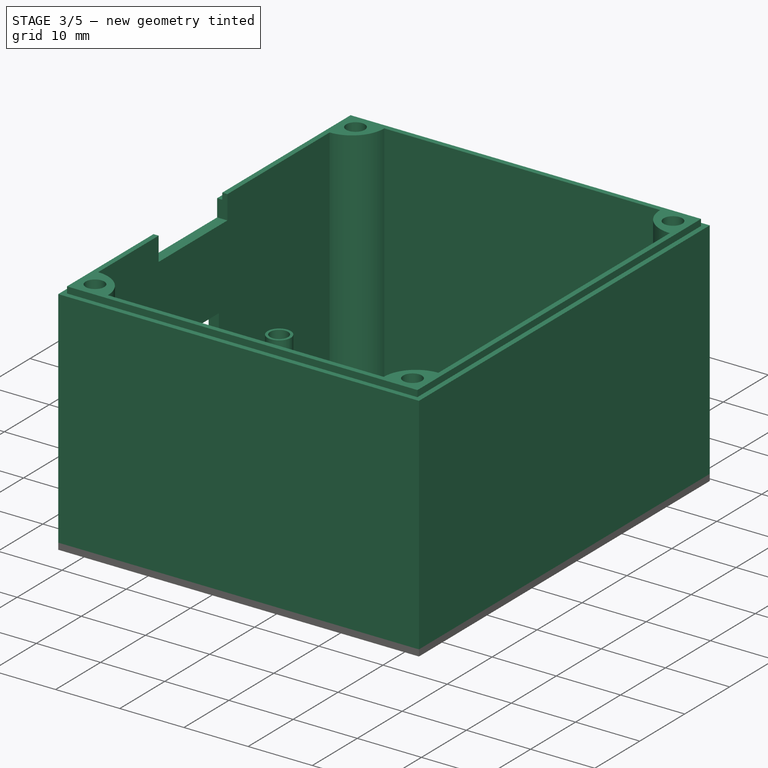
[diagram: stage 3 of 5 — iso view after this stage's code; geometry added in this stage tinted green]
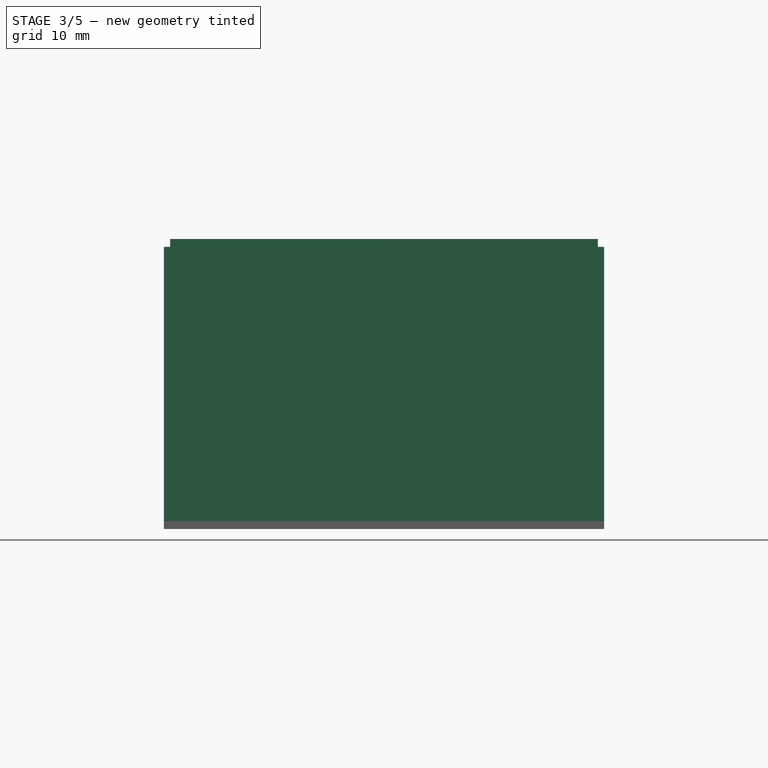
[diagram: stage 3 of 5 — front view after this stage's code; geometry added in this stage tinted green]
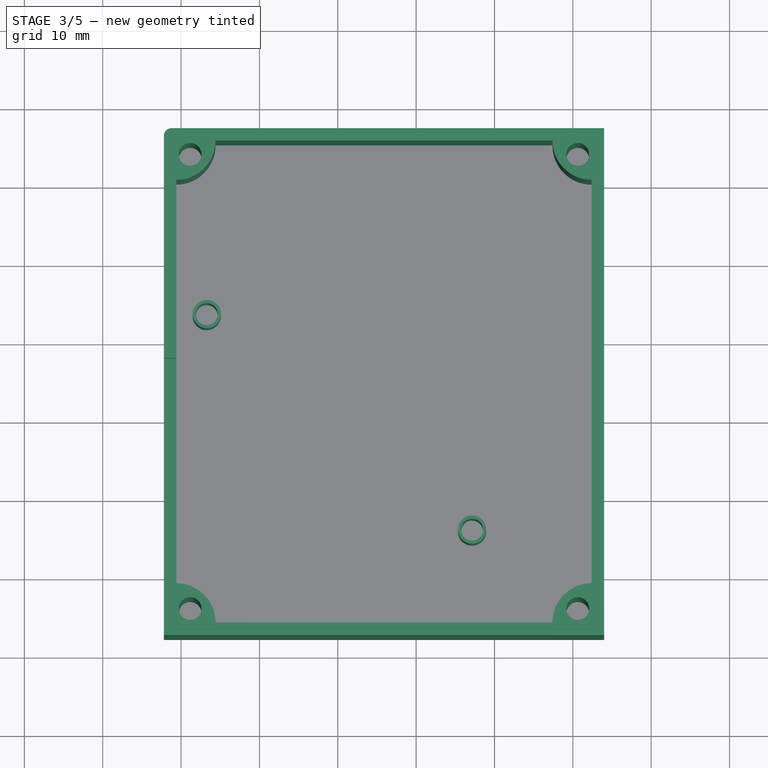
[diagram: stage 3 of 5 — top view after this stage's code; geometry added in this stage tinted green]
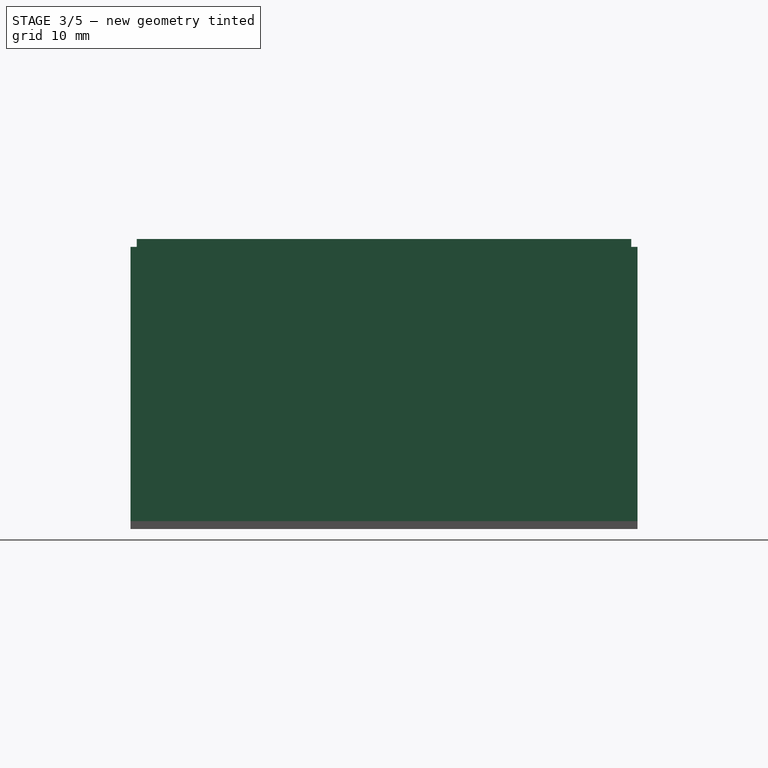
[diagram: stage 3 of 5 — right view after this stage's code; geometry added in this stage tinted green]
FEATURE [Sketcher::SketchObject] Sketch014
  ExternalGeometry = -> [Pad012]
  FullyConstrained = true
  MapMode = 5
  Placement = pos=(0,0,1) rot=(0,0,1;0rad)
  Support = -> [Pad012]
  sketch-geometry (32):
    g0: LineSegment StartX=-22.2 StartY=37 StartZ=0 EndX=34 EndY=37 EndZ=0
    g1: LineSegment StartX=34 StartY=37 StartZ=0 EndX=34 EndY=-27.703 EndZ=0
    g2: LineSegment StartX=34 StartY=-27.703 StartZ=0 EndX=-22.2 EndY=-27.703 EndZ=0
    g3: LineSegment StartX=-22.2 StartY=-27.703 StartZ=0 EndX=-22.2 EndY=37 EndZ=0
    g4: LineSegment StartX=-20.6 StartY=35.4 StartZ=0 EndX=32.4 EndY=35.4 EndZ=0
    g5: LineSegment StartX=32.4 StartY=35.4 StartZ=0 EndX=32.4 EndY=-26.103 EndZ=0
    g6: LineSegment StartX=32.4 StartY=-26.103 StartZ=0 EndX=-20.6 EndY=-26.103 EndZ=0
    g7: LineSegment StartX=-20.6 StartY=-26.103 StartZ=0 EndX=-20.6 EndY=35.4 EndZ=0
    g8: ArcOfCircle CenterX=-20.6 CenterY=-26.103 CenterZ=0 NormalX=0 NormalY=0 NormalZ=1 AngleXU=0 Radius=5 StartAngle=3e-16 EndAngle=1.5708
    g9: LineSegment StartX=-15.6 StartY=-26.103 StartZ=0 EndX=27.4 EndY=-26.103 EndZ=0
    g10: LineSegment StartX=-20.6 StartY=-17.103 StartZ=0 EndX=-16.1 EndY=-21.603 EndZ=0
    g11: LineSegment StartX=-16.1 StartY=-21.603 StartZ=0 EndX=-11.6 EndY=-26.103 EndZ=0
    g12: LineSegment StartX=-11.6 StartY=-26.103 StartZ=0 EndX=-20.6 EndY=-26.103 EndZ=0
    g13: LineSegment StartX=-20.6 StartY=-26.103 StartZ=0 EndX=-20.6 EndY=-17.103 EndZ=0
    g14: LineSegment StartX=-20.6 StartY=-26.103 StartZ=0 EndX=-16.1 EndY=-21.603 EndZ=0
    g15: Circle CenterX=-18.8322 CenterY=-24.3352 CenterZ=0 NormalX=0 NormalY=0 NormalZ=1 AngleXU=0 Radius=1.45
    g16: LineSegment StartX=-20.6 StartY=35.4 StartZ=0 EndX=-20.6 EndY=26.4 EndZ=0
    g17: LineSegment StartX=-20.6 StartY=35.4 StartZ=0 EndX=-11.6 EndY=35.4 EndZ=0
    g18: LineSegment StartX=-20.6 StartY=30.4 StartZ=0 EndX=-20.6 EndY=-21.103 EndZ=0
    g19: Circle CenterX=-18.8322 CenterY=33.6322 CenterZ=0 NormalX=0 NormalY=0 NormalZ=1 AngleXU=0 Radius=1.45
    g20: LineSegment StartX=23.4 StartY=-26.103 StartZ=0 EndX=32.4 EndY=-26.103 EndZ=0
    g21: LineSegment StartX=32.4 StartY=-26.103 StartZ=0 EndX=32.4 EndY=-17.103 EndZ=0
    g22: ArcOfCircle CenterX=32.4 CenterY=-26.103 CenterZ=0 NormalX=0 NormalY=0 NormalZ=1 AngleXU=0 Radius=5 StartAngle=1.5708 EndAngle=3.14159
    g23: Circle CenterX=30.6322 CenterY=-24.3352 CenterZ=0 NormalX=0 NormalY=0 NormalZ=1 AngleXU=0 Radius=1.45
    g24: ArcOfCircle CenterX=32.4 CenterY=35.4 CenterZ=0 NormalX=0 NormalY=0 NormalZ=1 AngleXU=0 Radius=5 StartAngle=3.14159 EndAngle=4.71239
    g25: LineSegment StartX=23.4 StartY=35.4 StartZ=0 EndX=27.9 EndY=30.9 EndZ=0
    g26: LineSegment StartX=27.9 StartY=30.9 StartZ=0 EndX=32.4 EndY=26.4 EndZ=0
    g27: LineSegment StartX=27.9 StartY=30.9 StartZ=0 EndX=32.4 EndY=35.4 EndZ=0
    g28: Circle CenterX=30.6322 CenterY=33.6322 CenterZ=0 NormalX=0 NormalY=0 NormalZ=1 AngleXU=0 Radius=1.45
    g29: LineSegment StartX=-15.6 StartY=35.4 StartZ=0 EndX=27.4 EndY=35.4 EndZ=0
    g30: LineSegment StartX=32.4 StartY=30.4 StartZ=0 EndX=32.4 EndY=-21.103 EndZ=0
    g31: ArcOfCircle CenterX=-20.6 CenterY=35.4 CenterZ=0 NormalX=0 NormalY=0 NormalZ=1 AngleXU=0 Radius=5 StartAngle=4.71239 EndAngle=6.28319
  constraints (92):
    c: Coincident(g0,g1)
    c: Coincident(g1,g2)
    c: Coincident(g2,g3)
    c: Coincident(g3,g0)
    c: Horizontal(g0)
    c: Horizontal(g2)
    c: Vertical(g1)
    c: Vertical(g3)
    c: Coincident(g0,g-3)
    c: Coincident(g1,g-4)
    c: Coincident(g4,g5)
    c: Coincident(g5,g6)
    c: Coincident(g6,g7)
    c: Coincident(g7,g4)
    c: Horizontal(g4)
    c: Horizontal(g6)
    c: Vertical(g5)
    c: Vertical(g7)
    c: DistanceX(g2,g6) = 1.6
    c: DistanceY(g2,g6) = 1.6
    c: DistanceX(g4,g0) = 1.6
    c: DistanceY(g4,g0) = 1.6
    c: Coincident(g8,g6)
    c: PointOnObject(g8,g6)
    c: PointOnObject(g8,g7)
    c: Radius(g8) = 5
    c: PointOnObject(g9,g6)
    c: Coincident(g9,g8)
    c: PointOnObject(g10,g7)
    c: Coincident(g11,g10)
    c: PointOnObject(g11,g9)
    c: Parallel(g10,g11)
    c: Coincident(g12,g11)
    c: Coincident(g13,g12)
    c: Coincident(g13,g10)
    c: Equal(g13,g12)
    c: Coincident(g12,g8)
    c: Equal(g10,g11)
    c: Coincident(g14,g8)
    c: Coincident(g14,g10)
    c: PointOnObject(g15,g14)
    c: Radius(g15) = 1.45
    c: Distance(g8,g15) = 2.5
    c: DistanceX(g8,g11) = 9
    c: Coincident(g16,g4)
    c: Coincident(g17,g4)
    c: Distance(g16) = 9
    c: Equal(g16,g17)
    c: Horizontal(g17)
    c: Vertical(g16)
    c: PointOnObject(g18,g7)
    c: PointOnObject(g29,g4)
    c: Coincident(g18,g8)
    c: Radius(g19) = 1.45
    c: PointOnObject(g20,g9)
    c: PointOnObject(g21,g5)
    c: Coincident(g21,g20)
    c: Equal(g21,g20)
    c: Coincident(g22,g5)
    c: PointOnObject(g22,g5)
    c: Coincident(g22,g9)
    c: Radius(g22) = 5
    c: Coincident(g22,g20)
    c: DistanceY(g22,g21) = 9
    c: Radius(g23) = 1.45
    c: Coincident(g24,g4)
    c: PointOnObject(g24,g4)
    c: PointOnObject(g24,g5)
    c: Radius(g24) = 5
    c: PointOnObject(g25,g4)
    c: Coincident(g26,g25)
    c: PointOnObject(g26,g5)
    c: DistanceX(g25,g24) = 9
    c: Equal(g25,g26)
    c: Parallel(g25,g26)
    c: DistanceY(g26,g24) = 9
    c: Coincident(g27,g25)
    c: Coincident(g27,g24)
    c: PointOnObject(g28,g27)
    c: Radius(g28) = 1.45
    c: Distance(g28,g24) = 2.5
    c: Coincident(g29,g24)
    c: Coincident(g30,g24)
    c: Coincident(g30,g22)
    c: Coincident(g31,g4)
    c: Coincident(g29,g31)
    c: Coincident(g31,g18)
    c: Radius(g31) = 5
    c: Horizontal(g28,g19)
    c: Vertical(g19,g15)
    c: Horizontal(g23,g15)
    c: Vertical(g28,g23)
FEATURE [PartDesign::Pad] Pad013
  BaseFeature = -> Pad012
  Direction = (1,1,1)
  Length = 35
  Length2 = 100
  Profile = -> Sketch014
  Type = 0
FEATURE [PartDesign::SubShapeBinder] Binder001
  BindMode = 0
  ClaimChildren = false
  Context = -> Body003 [Binder001.]
  Fuse = false
  MakeFace = true
  PartialLoad = false
  Relative = true
  Support = -> [Body[Pad011.Face25]]
  _Version = 2
FEATURE [Sketcher::SketchObject] Sketch015
  ExternalGeometry = -> [Binder001]
  FullyConstrained = true
  MapMode = 5
  Placement = pos=(-22.2,0,0) rot=(0.57735,-0.57735,-0.57735;2.0944rad)
  Support = -> [Pad013]
  sketch-geometry (4):
    g0: LineSegment StartX=-5.757 StartY=20.96 StartZ=0 EndX=3.803 EndY=20.96 EndZ=0
    g1: LineSegment StartX=3.803 StartY=20.96 StartZ=0 EndX=3.803 EndY=17.4 EndZ=0
    g2: LineSegment StartX=3.803 StartY=17.4 StartZ=0 EndX=-5.757 EndY=17.4 EndZ=0
    g3: LineSegment StartX=-5.757 StartY=17.4 StartZ=0 EndX=-5.757 EndY=20.96 EndZ=0
  constraints (12):
    c: Coincident(g0,g1)
    c: Coincident(g1,g2)
    c: Coincident(g2,g3)
    c: Coincident(g3,g0)
    c: Horizontal(g0)
    c: Horizontal(g2)
    c: Vertical(g1)
    c: Vertical(g3)
    c: DistanceX(g-3,g0) = 0.2
    c: DistanceY(g-3,g0) = 0.2
    c: DistanceX(g2,g-4) = 0.2
    c: DistanceY(g2,g-4) = 0.2
FEATURE [PartDesign::Pocket] Pocket
  BaseFeature = -> Pad013
  Length = 2
  Length2 = 100
  Profile = -> Sketch015
  Type = 0
FEATURE [Sketcher::SketchObject] Sketch016
  ExternalGeometry = -> [ShapeBinder001]
  FullyConstrained = true
  MapMode = 5
  Support = -> [XY_Plane003]
  sketch-geometry (4):
    g0: Circle CenterX=-16.718 CenterY=13.62 CenterZ=0 NormalX=0 NormalY=0 NormalZ=1 AngleXU=0 Radius=1.8
    g1: Circle CenterX=17.145 CenterY=-13.893 CenterZ=0 NormalX=0 NormalY=0 NormalZ=1 AngleXU=0 Radius=1.8
    g2: Circle CenterX=17.145 CenterY=-13.893 CenterZ=0 NormalX=0 NormalY=0 NormalZ=1 AngleXU=0 Radius=1.4
    g3: Circle CenterX=-16.718 CenterY=13.62 CenterZ=0 NormalX=0 NormalY=0 NormalZ=1 AngleXU=0 Radius=1.4
  constraints (8):
    c: Coincident(g0,g-3)
    c: Coincident(g1,g-4)
    c: Radius(g1) = 1.8
    c: Radius(g0) = 1.8
    c: Coincident(g2,g1)
    c: Radius(g2) = 1.4
    c: Coincident(g3,g0)
    c: Radius(g3) = 1.4
FEATURE [PartDesign::Pad] Pad014
  BaseFeature = -> Pocket
  Direction = (1,1,1)
  Length = 16
  Length2 = 100
  Profile = -> Sketch016
  Type = 0
FEATURE [PartDesign::SubShapeBinder] Binder002
  BindMode = 0
  ClaimChildren = false
  Context = -> Body003 [Binder002.]
  Fuse = false
  MakeFace = true
  PartialLoad = false
  Relative = true
  Support = -> [Body002[Pad010.Face2]]
  _Version = 2
FEATURE [Sketcher::SketchObject] Sketch017
  ExternalGeometry = -> [Binder002]
  FullyConstrained = true
  MapMode = 5
  Placement = pos=(-22.2,0,0) rot=(0.57735,-0.57735,-0.57735;2.0944rad)
  Support = -> [Pad014]
  sketch-geometry (4):
    g0: LineSegment StartX=-7.65 StartY=41.5 StartZ=0 EndX=7.65 EndY=41.5 EndZ=0
    g1: LineSegment StartX=7.65 StartY=41.5 StartZ=0 EndX=7.65 EndY=33.3 EndZ=0
    g2: LineSegment StartX=7.65 StartY=33.3 StartZ=0 EndX=-7.65 EndY=33.3 EndZ=0
    g3: LineSegment StartX=-7.65 StartY=33.3 StartZ=0 EndX=-7.65 EndY=41.5 EndZ=0
  constraints (12):
    c: Coincident(g0,g1)
    c: Coincident(g1,g2)
    c: Coincident(g2,g3)
    c: Coincident(g3,g0)
    c: Horizontal(g0)
    c: Vertical(g1)
    c: Vertical(g3)
    c: DistanceX(g-4,g1) = 1.6
    c: DistanceX(g2,g-3) = 1.6
    c: DistanceY(g-4,g0) = 3
    c: Horizontal(g2)
    c: DistanceY(g1,g-4) = 0.7
FEATURE [PartDesign::Pocket] Pocket001
  BaseFeature = -> Pad014
  Length = 2
  Length2 = 100
  Profile = -> Sketch017
  Type = 0
FEATURE [PartDesign::Fillet] Fillet003
  Base = -> Pocket001 [Edge14,Edge1]
  BaseFeature = -> Pocket001
  Radius = 1
  SupportTransform = false
FEATURE [Sketcher::SketchObject] Sketch029
  FullyConstrained = false
  MapMode = 5
  Placement = pos=(0,0,36) rot=(0,0,1;0rad)
  sketch-geometry (20):
    g0: LineSegment StartX=-15.6 StartY=35.4 StartZ=0 EndX=27.4 EndY=35.4 EndZ=0
    g1: LineSegment StartX=32.4 StartY=30.4 StartZ=0 EndX=32.4 EndY=-21.103 EndZ=0
    g2: LineSegment StartX=27.4 StartY=-26.103 StartZ=0 EndX=-15.6 EndY=-26.103 EndZ=0
    g3: LineSegment StartX=-20.6 StartY=-21.103 StartZ=0 EndX=-20.6 EndY=-7.65 EndZ=0
    g4: LineSegment StartX=-20.6 StartY=30.4 StartZ=0 EndX=-20.6 EndY=7.65 EndZ=0
    g5: Circle CenterX=-18.8322 CenterY=33.6322 CenterZ=0 NormalX=0 NormalY=0 NormalZ=1 AngleXU=0 Radius=1.45
    g6: Circle CenterX=30.6322 CenterY=33.6322 CenterZ=0 NormalX=0 NormalY=0 NormalZ=1 AngleXU=0 Radius=1.45
    g7: Circle CenterX=30.6322 CenterY=-24.3352 CenterZ=0 NormalX=0 NormalY=0 NormalZ=1 AngleXU=0 Radius=1.45
    g8: Circle CenterX=-18.8322 CenterY=-24.3352 CenterZ=0 NormalX=0 NormalY=0 NormalZ=1 AngleXU=0 Radius=1.45
    g9: ArcOfCircle CenterX=-20.6 CenterY=-26.103 CenterZ=0 NormalX=0 NormalY=0 NormalZ=1 AngleXU=0 Radius=5 StartAngle=0 EndAngle=1.5708
    g10: ArcOfCircle CenterX=32.4 CenterY=-26.103 CenterZ=0 NormalX=0 NormalY=0 NormalZ=1 AngleXU=0 Radius=5 StartAngle=1.5708 EndAngle=3.14159
    g11: ArcOfCircle CenterX=32.4 CenterY=35.4 CenterZ=0 NormalX=0 NormalY=0 NormalZ=1 AngleXU=0 Radius=5 StartAngle=3.14159 EndAngle=4.71239
    g12: ArcOfCircle CenterX=-20.6 CenterY=35.4 CenterZ=0 NormalX=0 NormalY=0 NormalZ=1 AngleXU=0 Radius=5 StartAngle=4.71239 EndAngle=6.28319
    g13: LineSegment StartX=33.2 StartY=36.2 StartZ=0 EndX=33.2 EndY=-26.903 EndZ=0
    g14: LineSegment StartX=33.2 StartY=-26.903 StartZ=0 EndX=-21.4 EndY=-26.903 EndZ=0
    g15: LineSegment StartX=-21.4 StartY=36.2 StartZ=0 EndX=33.2 EndY=36.2 EndZ=0
    g16: LineSegment StartX=-20.6 StartY=-7.65 StartZ=0 EndX=-21.4 EndY=-7.65 EndZ=0
    g17: LineSegment StartX=-21.4 StartY=-7.65 StartZ=0 EndX=-21.4 EndY=-26.903 EndZ=0
    g18: LineSegment StartX=-20.6 StartY=7.65 StartZ=0 EndX=-21.4 EndY=7.65 EndZ=0
    g19: LineSegment StartX=-21.4 StartY=7.65 StartZ=0 EndX=-21.4 EndY=36.2 EndZ=0
  constraints (28):
    c: Coincident(g9,g2)
    c: Coincident(g9,g3)
    c: Coincident(g10,g1)
    c: Coincident(g10,g2)
    c: Coincident(g11,g0)
    c: Coincident(g11,g1)
    c: Coincident(g12,g4)
    c: Coincident(g12,g0)
    c: Vertical(g13)
    c: Horizontal(g14)
    c: Horizontal(g15)
    c: DistanceX(g14,g3) = 0.8
    c: DistanceX(g1,g13) = 0.8
    c: DistanceY(g14,g2) = 0.8
    c: DistanceY(g0,g15) = 0.8
    c: Coincident(g15,g13)
    c: Coincident(g14,g13)
    c: Coincident(g16,g3)
    c: Horizontal(g16)
    c: Vertical(g17)
    c: Coincident(g17,g14)
    c: Coincident(g16,g17)
    c: Coincident(g18,g4)
    c: Horizontal(g18)
    c: Coincident(g19,g18)
    c: Coincident(g19,g15)
    c: Vertical(g19)
    c: DistanceX(g18,g18) = 0.8
FEATURE [PartDesign::Pad] Pad025
  BaseFeature = -> Fillet003
  Direction = (1,1,1)
  Length = 1
  Length2 = 100
  Profile = -> Sketch029
  Type = 0
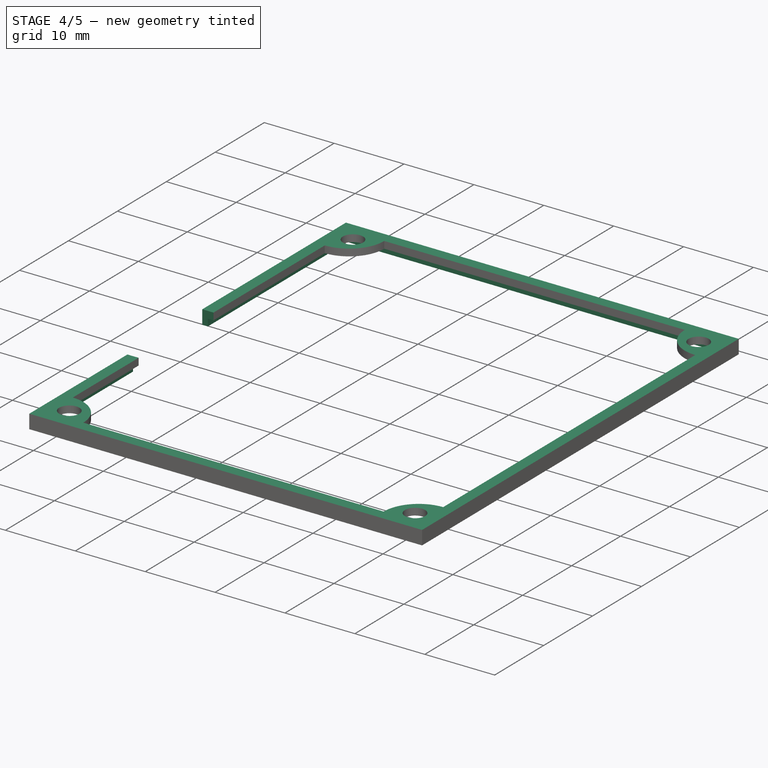
[diagram: stage 4 of 5 — iso view after this stage's code; geometry added in this stage tinted green]
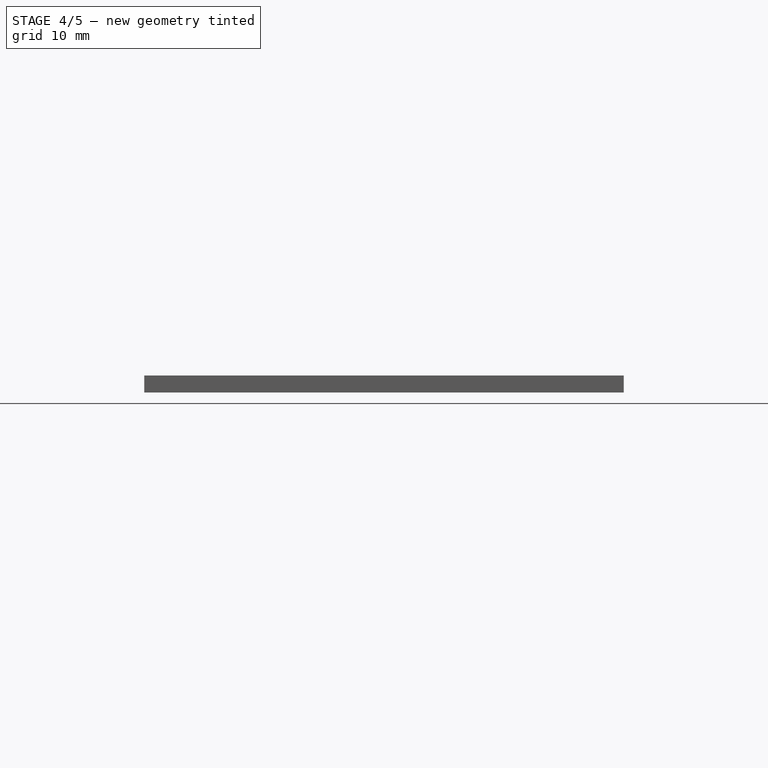
[diagram: stage 4 of 5 — front view after this stage's code; geometry added in this stage tinted green]
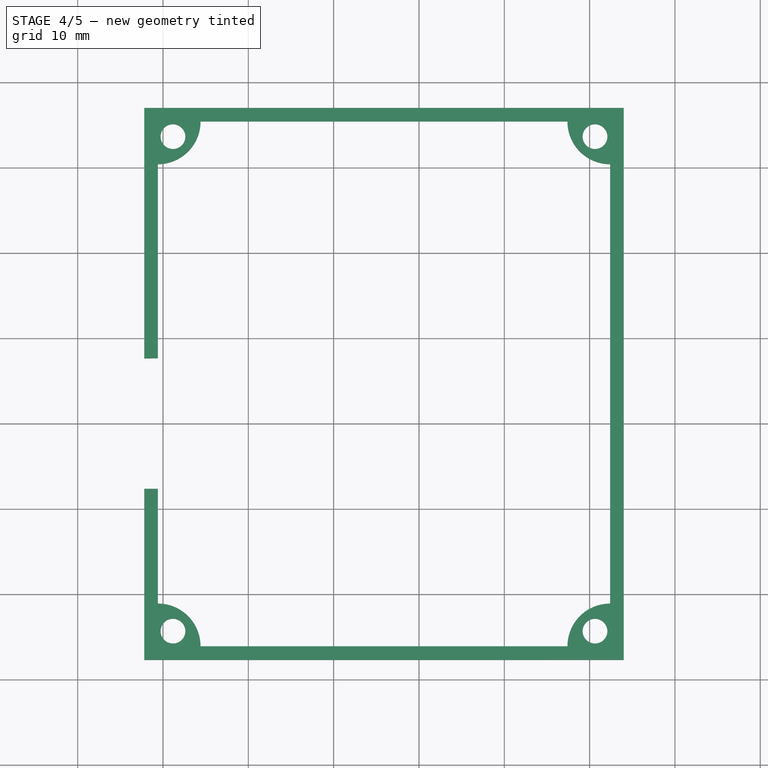
[diagram: stage 4 of 5 — top view after this stage's code; geometry added in this stage tinted green]
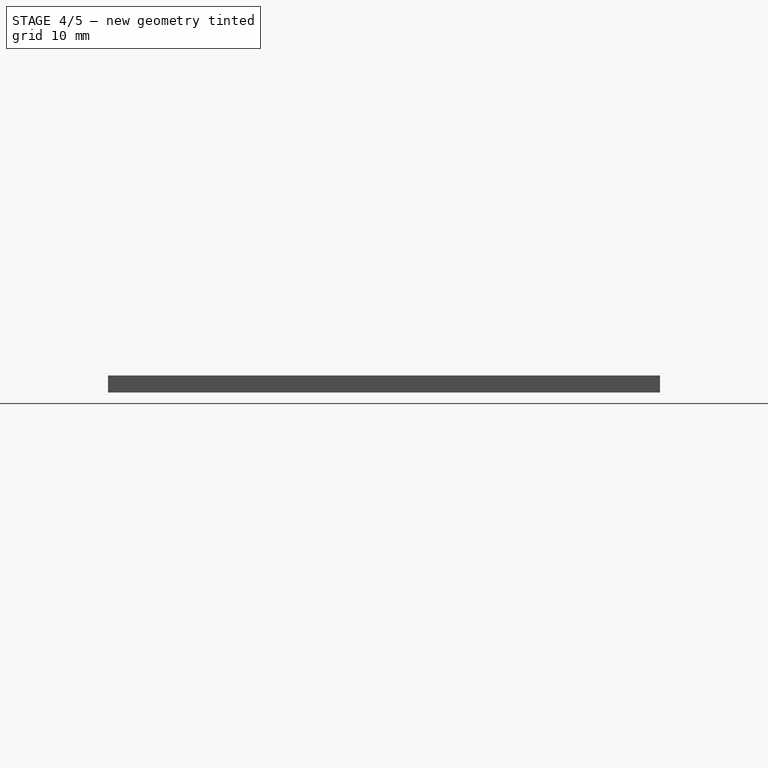
[diagram: stage 4 of 5 — right view after this stage's code; geometry added in this stage tinted green]
FEATURE [PartDesign::SubShapeBinder] Binder003
  BindMode = 0
  ClaimChildren = false
  Context = -> Body004 [Binder003.]
  Fuse = false
  MakeFace = true
  PartialLoad = false
  Relative = true
  Support = -> [Body003[Pad025.Face15]]
  _Version = 2
FEATURE [Sketcher::SketchObject] Sketch030
  ExternalGeometry = -> [Binder003]
  FullyConstrained = false
  MapMode = 5
  Support = -> [XY_Plane004]
  sketch-geometry (12):
    g0: LineSegment StartX=34 StartY=37 StartZ=0 EndX=34 EndY=-27.703 EndZ=0
    g1: LineSegment StartX=-22.2 StartY=37 StartZ=0 EndX=34 EndY=37 EndZ=0
    g2: LineSegment StartX=-22.2 StartY=37 StartZ=0 EndX=-22.2 EndY=7.65 EndZ=0
    g3: LineSegment StartX=-22.2 StartY=-27.703 StartZ=0 EndX=34 EndY=-27.703 EndZ=0
    g4: LineSegment StartX=-22.2 StartY=-7.65 StartZ=0 EndX=-22.2 EndY=-27.703 EndZ=0
    g5: LineSegment StartX=-21.4 StartY=-7.65 StartZ=0 EndX=-21.4 EndY=-26.903 EndZ=0
    g6: LineSegment StartX=-22.2 StartY=-7.65 StartZ=0 EndX=-21.4 EndY=-7.65 EndZ=0
    g7: LineSegment StartX=-21.4 StartY=-26.903 StartZ=0 EndX=33.2 EndY=-26.903 EndZ=0
    g8: LineSegment StartX=33.2 StartY=-26.903 StartZ=0 EndX=33.2 EndY=36.2 EndZ=0
    g9: LineSegment StartX=33.2 StartY=36.2 StartZ=0 EndX=-21.4 EndY=36.2 EndZ=0
    g10: LineSegment StartX=-21.4 StartY=36.2 StartZ=0 EndX=-21.4 EndY=7.65 EndZ=0
    g11: LineSegment StartX=-22.2 StartY=7.65 StartZ=0 EndX=-21.4 EndY=7.65 EndZ=0
  constraints (24):
    c: Horizontal(g1)
    c: Coincident(g0,g3)
    c: Vertical(g0)
    c: Coincident(g0,g1)
    c: Vertical(g4)
    c: Coincident(g4,g3)
    c: Coincident(g2,g1)
    c: Vertical(g5)
    c: DistanceX(g4,g5) = 0.8
    c: Coincident(g6,g4)
    c: Horizontal(g6)
    c: Coincident(g6,g5)
    c: Horizontal(g7)
    c: Vertical(g8)
    c: Horizontal(g9)
    c: Vertical(g10)
    c: Coincident(g11,g2)
    c: Horizontal(g11)
    c: Vertical(g11,g5)
    c: Coincident(g10,g11)
    c: Coincident(g10,g9)
    c: Coincident(g9,g8)
    c: Coincident(g5,g7)
    c: Coincident(g7,g8)
FEATURE [PartDesign::Pad] Pad026
  Direction = (1,1,1)
  Length = 1
  Length2 = 100
  Profile = -> Sketch030
  Type = 0
FEATURE [PartDesign::SubShapeBinder] Binder004
  BindMode = 0
  ClaimChildren = false
  Context = -> Body004 [Binder004.]
  Fuse = false
  MakeFace = true
  PartialLoad = false
  Relative = true
  Support = -> [Body003[Pad025.Face37]]
  _Version = 2
FEATURE [Sketcher::SketchObject] Sketch031
  ExternalGeometry = -> [Pad026,Binder004]
  FullyConstrained = false
  MapMode = 5
  Placement = pos=(0,0,1) rot=(0,0,1;0rad)
  Support = -> [Pad026]
  sketch-geometry (20):
    g0: LineSegment StartX=-22.2 StartY=7.65 StartZ=0 EndX=-22.2 EndY=37 EndZ=0
    g1: LineSegment StartX=-22.2 StartY=37 StartZ=0 EndX=34 EndY=37 EndZ=0
    g2: LineSegment StartX=34 StartY=37 StartZ=0 EndX=34 EndY=-27.703 EndZ=0
    g3: LineSegment StartX=34 StartY=-27.703 StartZ=0 EndX=-22.2 EndY=-27.703 EndZ=0
    g4: LineSegment StartX=-22.2 StartY=-27.703 StartZ=0 EndX=-22.2 EndY=-7.65 EndZ=0
    g5: LineSegment StartX=-22.2 StartY=-7.65 StartZ=0 EndX=-20.6 EndY=-7.65 EndZ=0
    g6: LineSegment StartX=-20.6 StartY=-7.65 StartZ=0 EndX=-20.6 EndY=-21.103 EndZ=0
    g7: LineSegment StartX=-15.6 StartY=-26.103 StartZ=0 EndX=27.4 EndY=-26.103 EndZ=0
    g8: LineSegment StartX=32.4 StartY=-21.103 StartZ=0 EndX=32.4 EndY=30.4 EndZ=0
    g9: LineSegment StartX=27.4 StartY=35.4 StartZ=0 EndX=-15.6 EndY=35.4 EndZ=0
    g10: LineSegment StartX=-20.6 StartY=30.4 StartZ=0 EndX=-20.6 EndY=7.65 EndZ=0
    g11: LineSegment StartX=-22.2 StartY=7.65 StartZ=0 EndX=-20.6 EndY=7.65 EndZ=0
    g12: Circle CenterX=-18.8322 CenterY=33.6322 CenterZ=0 NormalX=0 NormalY=0 NormalZ=1 AngleXU=0 Radius=1.45
    g13: Circle CenterX=30.6322 CenterY=33.6322 CenterZ=0 NormalX=0 NormalY=0 NormalZ=1 AngleXU=0 Radius=1.45
    g14: Circle CenterX=-18.8322 CenterY=-24.3352 CenterZ=0 NormalX=0 NormalY=0 NormalZ=1 AngleXU=0 Radius=1.45
    g15: Circle CenterX=30.6322 CenterY=-24.3352 CenterZ=0 NormalX=0 NormalY=0 NormalZ=1 AngleXU=0 Radius=1.45
    g16: ArcOfCircle CenterX=32.4 CenterY=-26.103 CenterZ=0 NormalX=0 NormalY=0 NormalZ=1 AngleXU=0 Radius=5 StartAngle=1.5708 EndAngle=3.14159
    g17: ArcOfCircle CenterX=-20.6 CenterY=-26.103 CenterZ=0 NormalX=0 NormalY=0 NormalZ=1 AngleXU=0 Radius=5 StartAngle=7.37e-14 EndAngle=1.5708
    g18: ArcOfCircle CenterX=-20.6 CenterY=35.4 CenterZ=0 NormalX=0 NormalY=0 NormalZ=1 AngleXU=0 Radius=5 StartAngle=4.71239 EndAngle=6.28319
    g19: ArcOfCircle CenterX=32.4 CenterY=35.4 CenterZ=0 NormalX=0 NormalY=0 NormalZ=1 AngleXU=0 Radius=5 StartAngle=3.14159 EndAngle=4.71239
  constraints (16):
    c: Coincident(g1,g0)
    c: Coincident(g2,g1)
    c: Coincident(g3,g2)
    c: Coincident(g4,g3)
    c: Coincident(g5,g4)
    c: Coincident(g6,g5)
    c: Coincident(g11,g0)
    c: Coincident(g11,g10)
    c: Coincident(g19,g9)
    c: Coincident(g19,g8)
    c: Coincident(g7,g16)
    c: Coincident(g16,g8)
    c: Coincident(g17,g7)
    c: Coincident(g17,g6)
    c: Coincident(g18,g10)
    c: Coincident(g18,g9)
FEATURE [PartDesign::Pad] Pad027
  BaseFeature = -> Pad026
  Direction = (1,1,1)
  Length = 1
  Length2 = 100
  Profile = -> Sketch031
  Type = 0
FEATURE [PartDesign::Fillet] Fillet
  Base = -> Pad025 [Edge37,Edge25,Edge16]
  BaseFeature = -> Pad025
  Radius = 1
  SupportTransform = false
FEATURE [PartDesign::Fillet] Fillet004
  Base = -> Fillet [Edge145,Edge144,Edge124,Edge126]
  BaseFeature = -> Fillet
  Radius = 1
  SupportTransform = false
FEATURE [PartDesign::Fillet] Fillet005
  Base = -> Fillet004 [Edge69,Edge72,Edge28,Edge25]
  BaseFeature = -> Fillet004
  Radius = 1
  SupportTransform = false
FEATURE [PartDesign::Fillet] Fillet006
  Base = -> Fillet005 [Edge89,Edge54,Edge50,Edge114,Edge43,Edge46,Edge102,Edge98]
  BaseFeature = -> Fillet005
  Radius = 1
  SupportTransform = false
FEATURE [PartDesign::Body] Body004  label="Lid"
  Group = -> [Binder003,Sketch030,Pad026,Binder004,Sketch031,Pad027,Sketch032,Sketch033,Pad028,Pad029,Sketch034,Pad030,Binder005,Sketch035,Pocket002,Fillet007,Fillet008]
  Origin = -> Origin004
  Placement = pos=(0,0,20) rot=(0,0,1;0rad)
  Tip = -> Fillet008
FEATURE [Sketcher::SketchObject] Sketch036
  ExternalGeometry = -> [Fillet006]
  FullyConstrained = true
  MapMode = 5
  Placement = pos=(0,0,1) rot=(0,0,1;0rad)
  Support = -> [Fillet006]
  sketch-geometry (4):
    g0: LineSegment StartX=-14.6839 StartY=4.6485 StartZ=0 EndX=-14.6839 EndY=-26.103 EndZ=0
    g1: LineSegment StartX=-14.6839 StartY=4.6485 StartZ=0 EndX=-14.6839 EndY=35.4 EndZ=0
    g2: ArcOfCircle CenterX=-18.0005 CenterY=4.6485 CenterZ=0 NormalX=0 NormalY=0 NormalZ=1 AngleXU=0 Radius=1.75 StartAngle=1.5708 EndAngle=4.71239
    g3: ArcOfCircle CenterX=-14.6839 CenterY=4.6485 CenterZ=0 NormalX=0 NormalY=0 NormalZ=1 AngleXU=0 Radius=3.75 StartAngle=3.62711 EndAngle=8.93926
  constraints (12):
    c: Coincident(g0,g-4)
    c: Vertical(g0)
    c: Coincident(g1,g-3)
    c: Equal(g1,g0)
    c: Vertical(g2,g2)
    c: Radius(g2) = 1.75
    c: Coincident(g3,g2)
    c: Coincident(g3,g2)
    c: Coincident(g0,g3)
    c: Coincident(g3,g1)
    c: Radius(g3) = 3.75
    c: Vertical(g2,g2)
FEATURE [PartDesign::Pocket] Pocket003
  BaseFeature = -> Fillet006
  Length = 5
  Length2 = 100
  Profile = -> Sketch036
  Type = 0
FEATURE [PartDesign::Body] Body003  label="Box"
  Group = -> [Sketch013,ShapeBinder,ShapeBinder001,Binder,Pad012,Sketch014,Pad013,Sketch015,Binder001,Pocket,Sketch016,Pad014,Binder002,Sketch017,Pocket001,Fillet003,Sketch029,Pad025,Fillet,Fillet004,Fillet005,Fillet006,Sketch036,Pocket003]
  Origin = -> Origin003
  Placement = pos=(0,0,-16) rot=(0,0,1;0rad)
  Tip = -> Pocket003
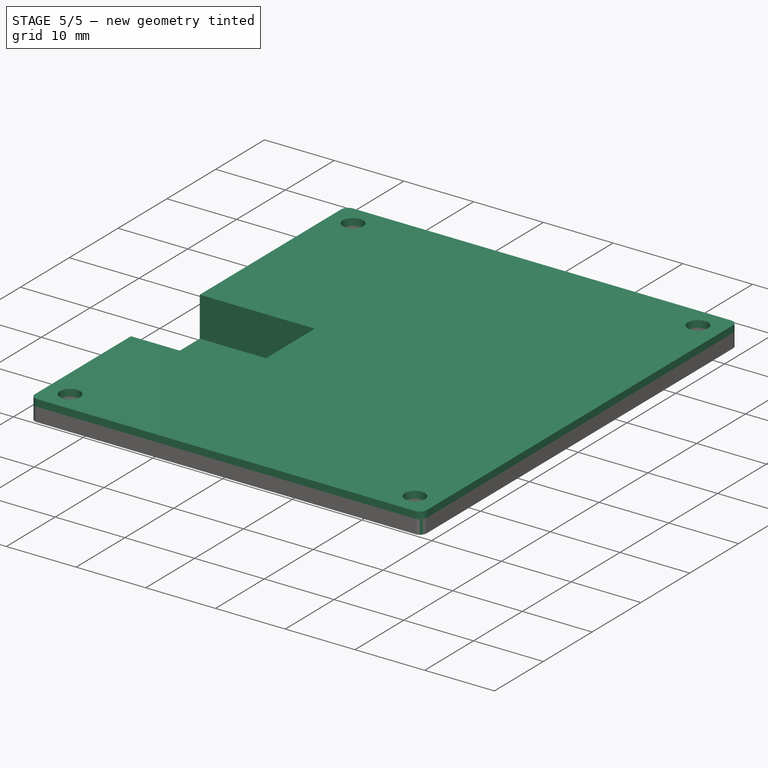
[diagram: stage 5 of 5 — iso view after this stage's code; geometry added in this stage tinted green]
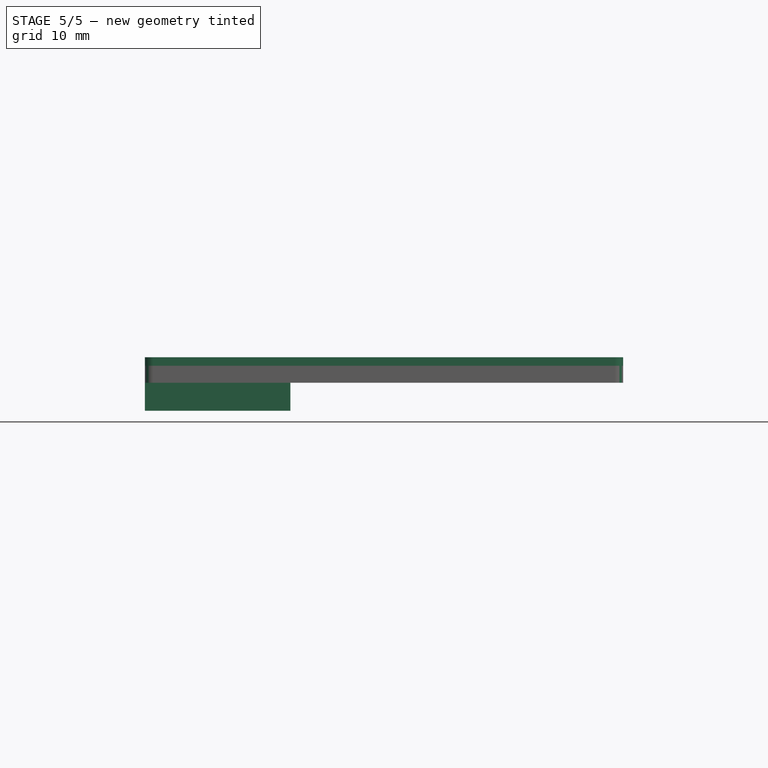
[diagram: stage 5 of 5 — front view after this stage's code; geometry added in this stage tinted green]
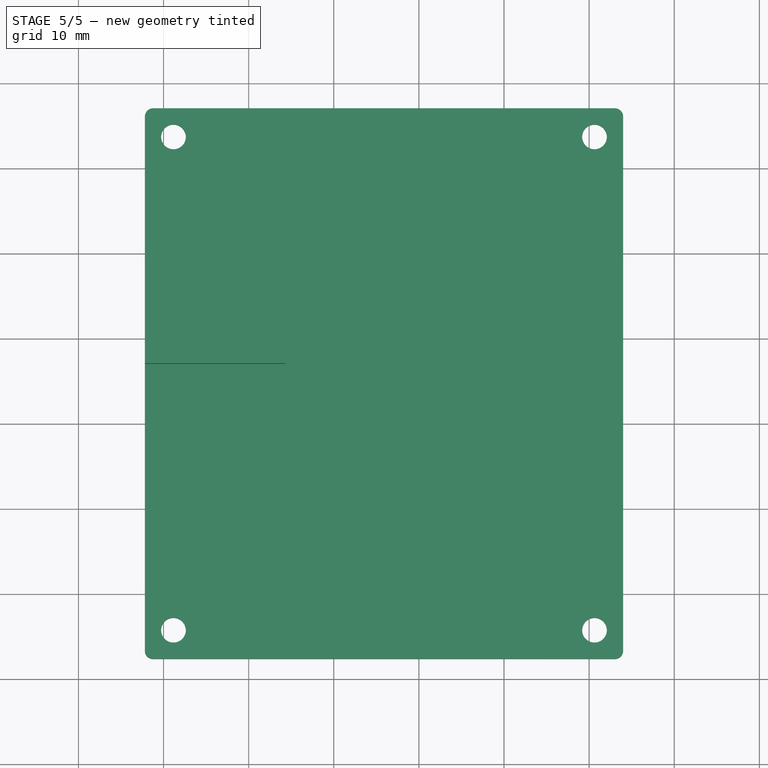
[diagram: stage 5 of 5 — top view after this stage's code; geometry added in this stage tinted green]
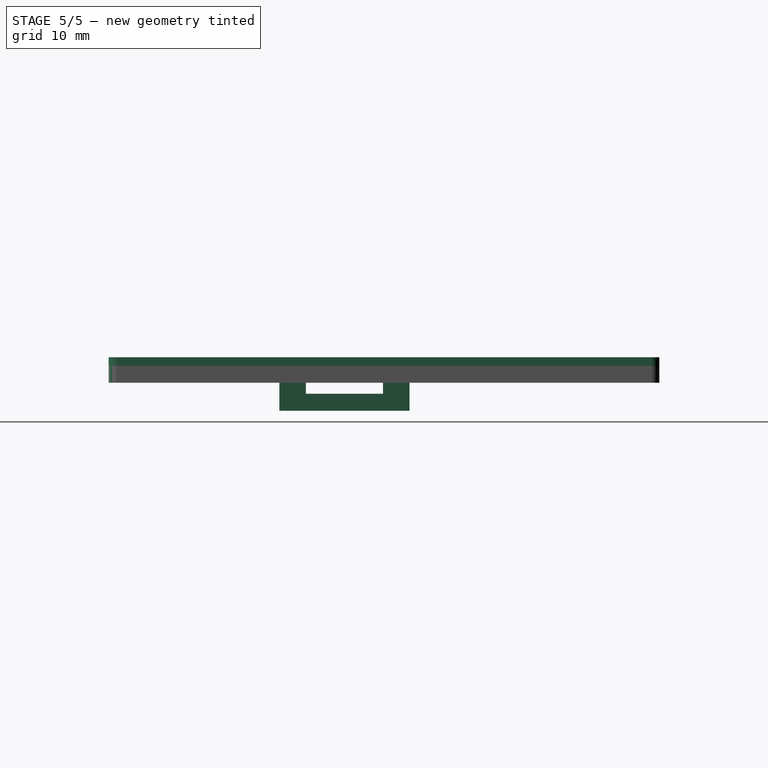
[diagram: stage 5 of 5 — right view after this stage's code; geometry added in this stage tinted green]
FEATURE [Sketcher::SketchObject] Sketch033
  ExternalGeometry = -> [Pad027]
  FullyConstrained = true
  MapMode = 5
  Placement = pos=(0,0,2) rot=(0,0,1;0rad)
  Support = -> [Pad027]
  sketch-geometry (8):
    g0: LineSegment StartX=-22.2 StartY=7.05 StartZ=0 EndX=-5.7 EndY=7.05 EndZ=0
    g1: LineSegment StartX=-22.2 StartY=-7.05 StartZ=0 EndX=-5.7 EndY=-7.05 EndZ=0
    g2: LineSegment StartX=-5.7 StartY=7.05 StartZ=0 EndX=-5.7 EndY=-7.05 EndZ=0
    g3: LineSegment StartX=-5.1 StartY=7.65 StartZ=0 EndX=-5.1 EndY=-7.65 EndZ=0
    g4: LineSegment StartX=-5.1 StartY=-7.65 StartZ=0 EndX=-22.2 EndY=-7.65 EndZ=0
    g5: LineSegment StartX=-5.1 StartY=7.65 StartZ=0 EndX=-22.2 EndY=7.65 EndZ=0
    g6: LineSegment StartX=-22.2 StartY=7.65 StartZ=0 EndX=-22.2 EndY=7.05 EndZ=0
    g7: LineSegment StartX=-22.2 StartY=-7.05 StartZ=0 EndX=-22.2 EndY=-7.65 EndZ=0
  constraints (22):
    c: Horizontal(g0)
    c: Horizontal(g1)
    c: Coincident(g2,g0)
    c: Coincident(g2,g1)
    c: Vertical(g2)
    c: Vertical(g3)
    c: Coincident(g4,g3)
    c: Horizontal(g4)
    c: Coincident(g5,g3)
    c: Horizontal(g5)
    c: Vertical(g5,g0)
    c: Vertical(g1,g4)
    c: Coincident(g6,g5)
    c: Coincident(g6,g0)
    c: Coincident(g7,g1)
    c: Coincident(g7,g4)
    c: DistanceY(g4,g1) = 0.6
    c: DistanceY(g0,g5) = 0.6
    c: DistanceX(g0,g3) = 0.6
    c: DistanceX(g0,g0) = 16.5
    c: Coincident(g-3,g5)
    c: Coincident(g4,g-4)
FEATURE [PartDesign::Pad] Pad028
  BaseFeature = -> Pad027
  Direction = (1,1,1)
  Length = 4.7
  Length2 = 100
  Profile = -> Sketch033
  Reversed = true
  Type = 0
FEATURE [Sketcher::SketchObject] Sketch032
  ExternalGeometry = -> [Pad027,Pad028]
  FullyConstrained = true
  MapMode = 5
  Placement = pos=(0,0,2) rot=(0,0,1;0rad)
  Support = -> [Pad027]
  sketch-geometry (12):
    g0: LineSegment StartX=-22.2 StartY=-27.703 StartZ=0 EndX=34 EndY=-27.703 EndZ=0
    g1: LineSegment StartX=34 StartY=-27.703 StartZ=0 EndX=34 EndY=37 EndZ=0
    g2: LineSegment StartX=34 StartY=37 StartZ=0 EndX=-22.2 EndY=37 EndZ=0
    g3: Circle CenterX=-18.8322 CenterY=33.6322 CenterZ=0 NormalX=0 NormalY=0 NormalZ=1 AngleXU=0 Radius=1.45
    g4: Circle CenterX=30.6322 CenterY=33.6322 CenterZ=0 NormalX=0 NormalY=0 NormalZ=1 AngleXU=0 Radius=1.45
    g5: Circle CenterX=30.6322 CenterY=-24.3352 CenterZ=0 NormalX=0 NormalY=0 NormalZ=1 AngleXU=0 Radius=1.45
    g6: Circle CenterX=-18.8322 CenterY=-24.3352 CenterZ=0 NormalX=0 NormalY=0 NormalZ=1 AngleXU=0 Radius=1.45
    g7: LineSegment StartX=-22.2 StartY=37 StartZ=0 EndX=-22.2 EndY=7.05 EndZ=0
    g8: LineSegment StartX=-22.2 StartY=7.05 StartZ=0 EndX=-5.7 EndY=7.05 EndZ=0
    g9: LineSegment StartX=-5.7 StartY=7.05 StartZ=0 EndX=-5.7 EndY=-7.05 EndZ=0
    g10: LineSegment StartX=-22.2 StartY=-27.703 StartZ=0 EndX=-22.2 EndY=-7.05 EndZ=0
    g11: LineSegment StartX=-22.2 StartY=-7.05 StartZ=0 EndX=-5.7 EndY=-7.05 EndZ=0
  constraints (24):
    c: Coincident(g0,g-3)
    c: Coincident(g1,g0)
    c: Coincident(g1,g-4)
    c: Coincident(g2,g1)
    c: Coincident(g3,g-7)
    c: Coincident(g4,g-8)
    c: Coincident(g5,g-9)
    c: Coincident(g6,g-10)
    c: Equal(g-10,g6)
    c: Equal(g5,g-9)
    c: Equal(g3,g-7)
    c: Equal(g4,g-8)
    c: Coincident(g7,g2)
    c: Coincident(g7,g-11)
    c: Coincident(g8,g7)
    c: Coincident(g8,g-12)
    c: Coincident(g9,g8)
    c: Coincident(g9,g-13)
    c: Coincident(g10,g0)
    c: Coincident(g10,g-14)
    c: Coincident(g11,g10)
    c: Coincident(g11,g9)
    c: Coincident(g-5,g2)
    c: Coincident(g0,g-6)
FEATURE [PartDesign::Pad] Pad029
  BaseFeature = -> Pad028
  Direction = (1,1,1)
  Length = 1
  Length2 = 100
  Profile = -> Sketch032
  Type = 0
FEATURE [Sketcher::SketchObject] Sketch034
  ExternalGeometry = -> [Pad029]
  FullyConstrained = true
  MapMode = 5
  Placement = pos=(0,0,-2.7) rot=(1,0,0;3.14159rad)
  Support = -> [Pad029]
  sketch-geometry (4):
    g0: LineSegment StartX=-22.2 StartY=7.65 StartZ=0 EndX=-5.1 EndY=7.65 EndZ=0
    g1: LineSegment StartX=-5.1 StartY=7.65 StartZ=0 EndX=-5.1 EndY=-7.65 EndZ=0
    g2: LineSegment StartX=-5.1 StartY=-7.65 StartZ=0 EndX=-22.2 EndY=-7.65 EndZ=0
    g3: LineSegment StartX=-22.2 StartY=-7.65 StartZ=0 EndX=-22.2 EndY=7.65 EndZ=0
  constraints (8):
    c: Coincident(g0,g-3)
    c: Coincident(g0,g-4)
    c: Coincident(g1,g0)
    c: Coincident(g1,g-5)
    c: Coincident(g2,g1)
    c: Coincident(g2,g-6)
    c: Coincident(g3,g2)
    c: Coincident(g3,g0)
FEATURE [PartDesign::Pad] Pad030
  BaseFeature = -> Pad029
  Direction = (1,1,1)
  Length = 0.6
  Length2 = 100
  Profile = -> Sketch034
  Type = 0
FEATURE [PartDesign::SubShapeBinder] Binder005
  BindMode = 0
  ClaimChildren = false
  Context = -> Body004 [Binder005.]
  Fuse = false
  MakeFace = true
  PartialLoad = false
  Relative = true
  Support = -> [Body002[Pad010.Sketch011.]]
  _Version = 2
FEATURE [Sketcher::SketchObject] Sketch035
  ExternalGeometry = -> [Binder005]
  FullyConstrained = true
  MapMode = 5
  Placement = pos=(-5.1,0,0) rot=(0.57735,0.57735,0.57735;2.0944rad)
  Support = -> [Pad030]
  sketch-geometry (4):
    g0: LineSegment StartX=-4.53 StartY=-0.01 StartZ=0 EndX=4.53 EndY=-0.01 EndZ=0
    g1: LineSegment StartX=4.53 StartY=-0.01 StartZ=0 EndX=4.53 EndY=-1.29 EndZ=0
    g2: LineSegment StartX=4.53 StartY=-1.29 StartZ=0 EndX=-4.53 EndY=-1.29 EndZ=0
    g3: LineSegment StartX=-4.53 StartY=-1.29 StartZ=0 EndX=-4.53 EndY=-0.01 EndZ=0
  constraints (12):
    c: Coincident(g0,g1)
    c: Coincident(g1,g2)
    c: Coincident(g2,g3)
    c: Coincident(g3,g0)
    c: Horizontal(g0)
    c: Horizontal(g2)
    c: Vertical(g1)
    c: Vertical(g3)
    c: DistanceX(g0,g-3) = 0.5
    c: DistanceY(g-3,g0) = 0.5
    c: DistanceX(g-4,g1) = 0.5
    c: DistanceY(g1,g-4) = 0.5
FEATURE [PartDesign::Pocket] Pocket002
  BaseFeature = -> Pad030
  Length = 2
  Length2 = 100
  Profile = -> Sketch035
  Type = 0
FEATURE [PartDesign::Fillet] Fillet007
  Base = -> Pocket002 [Edge133,Edge132,Edge131,Edge80,Edge129,Edge136,Edge135,Edge134]
  BaseFeature = -> Pocket002
  Radius = 1
  SupportTransform = false
FEATURE [PartDesign::Fillet] Fillet008
  Base = -> Fillet007 [Edge131,Edge166,Edge173,Edge129,Edge138,Edge143,Edge135,Edge153,Edge155,Edge133,Edge168,Edge180]
  BaseFeature = -> Fillet007
  Radius = 1
  SupportTransform = false
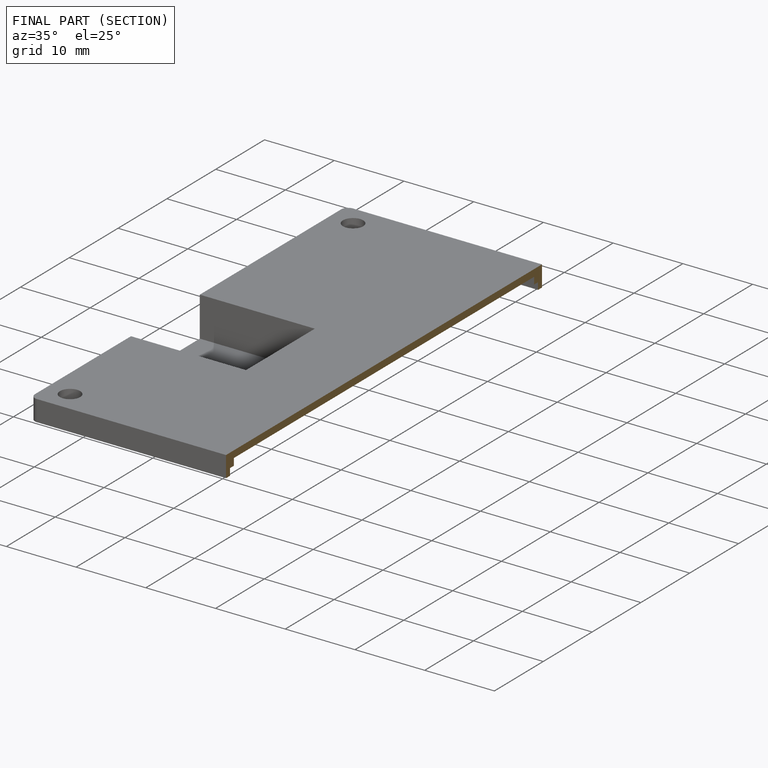
[diagram: finished part — half-section view (interior)]
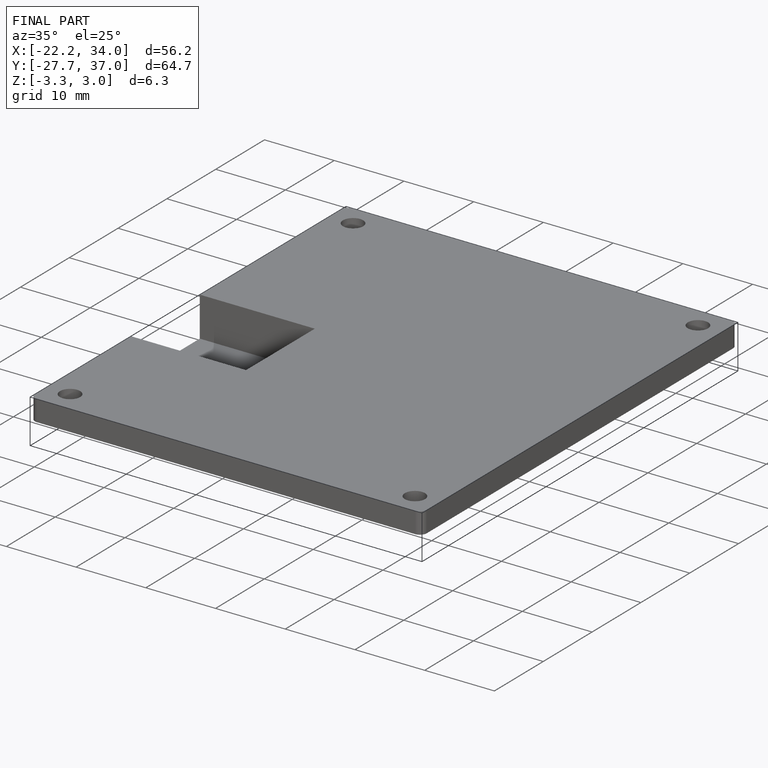
[diagram: finished part — iso view with bounding-box wireframe]
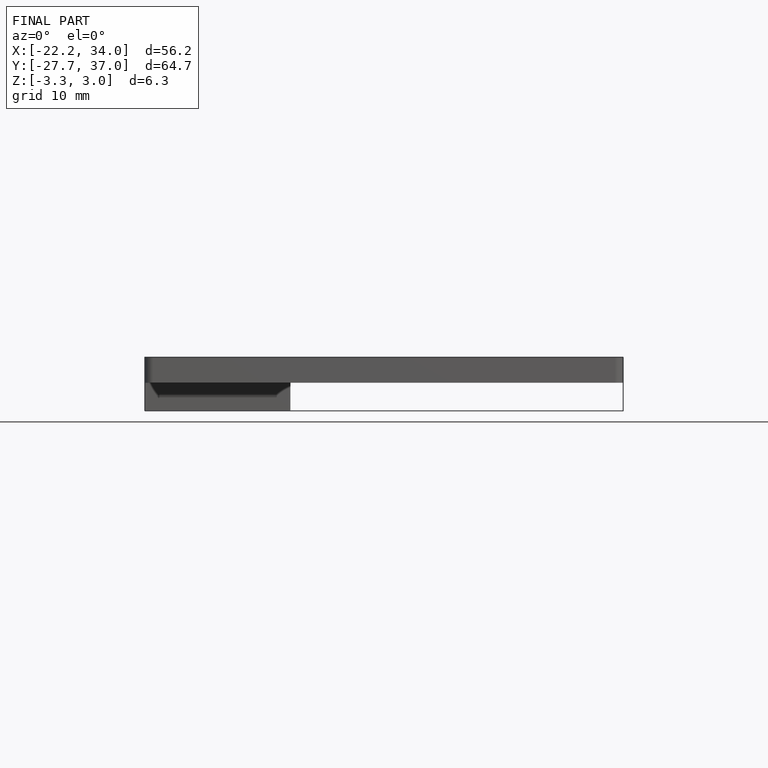
[diagram: finished part — front view with bounding-box wireframe]
